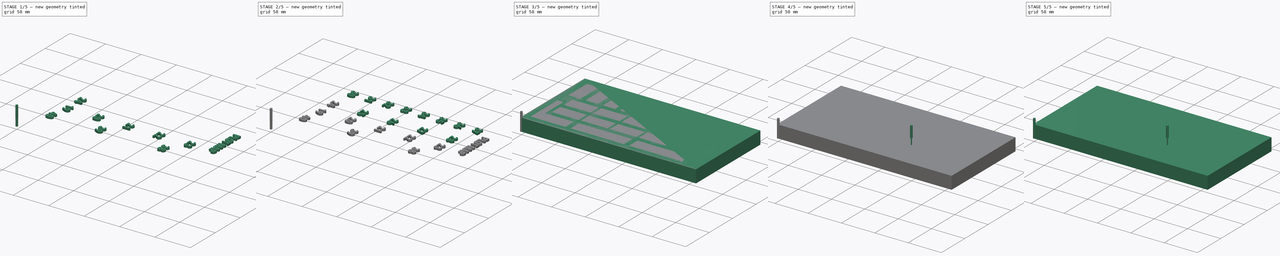
[diagram: build sequence overview — one tinted view per stage of 5, left to right]
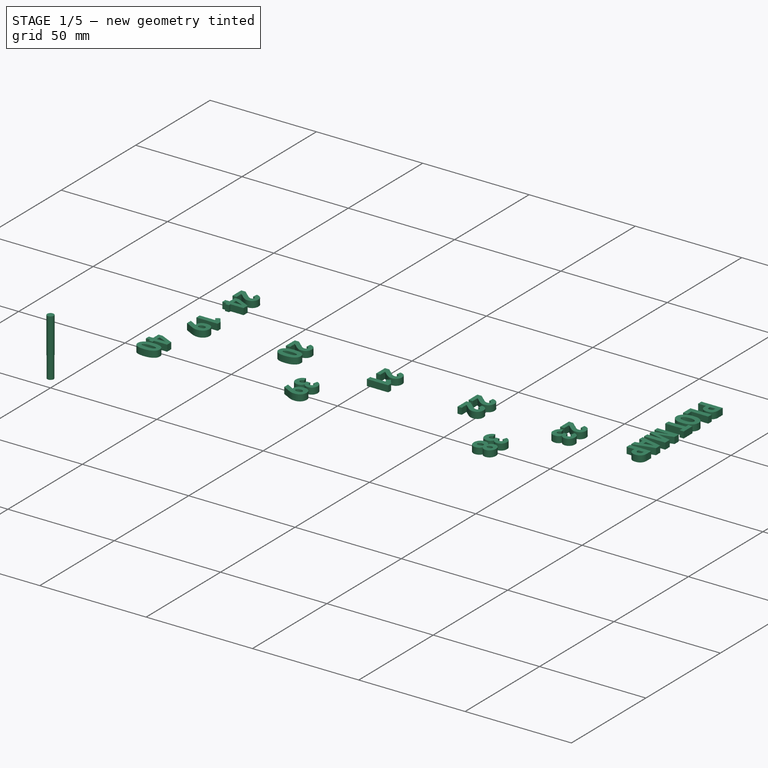
[diagram: stage 1 of 5 — iso view after this stage's code; geometry added in this stage tinted green]
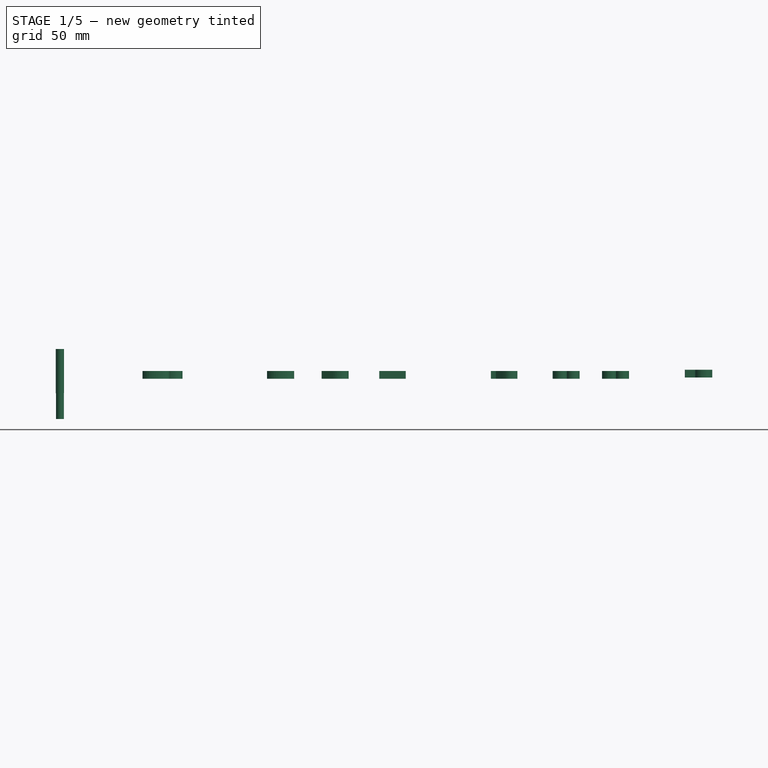
[diagram: stage 1 of 5 — front view after this stage's code; geometry added in this stage tinted green]
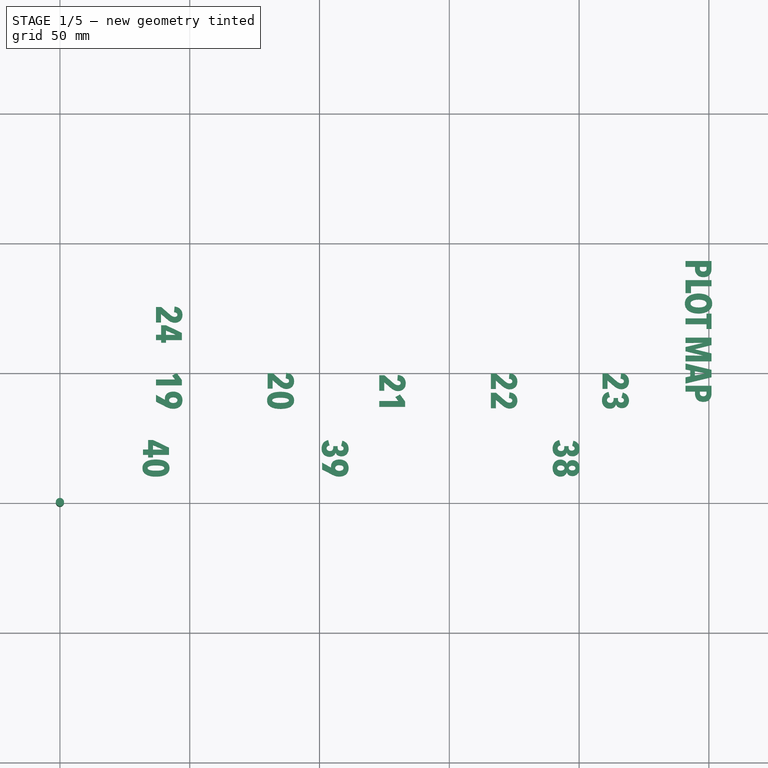
[diagram: stage 1 of 5 — top view after this stage's code; geometry added in this stage tinted green]
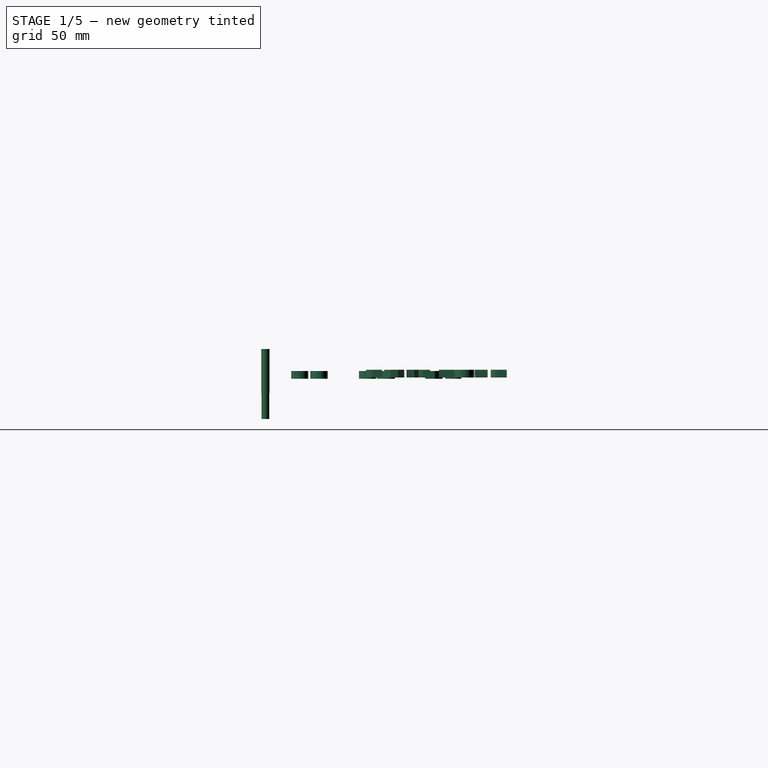
[diagram: stage 1 of 5 — right view after this stage's code; geometry added in this stage tinted green]
FCSTD DOCUMENT  (FreeCAD 0.22R37358 (Git))
Label: juell_bottom_w_title_single
License: All rights reserved
LicenseURL: http://en.wikipedia.org/wiki/All_rights_reserved
objects: Part::FeaturePython×30, Path::FeaturePython×30, Part::Part2DObjectPython×23, Part::Extrusion×23, App::DocumentObjectGroup×6, Sketcher::SketchObject×2, App::FeaturePython×2, Spreadsheet::Sheet×1, PartDesign::Pad×1, PartDesign::Pocket×1, PartDesign::Body×1, Part::MultiFuse×1, Part::Cut×1
note: 87 computed .brp shape members not serialized (recipe doc carries the construction recipe); baked Part::Feature solids carry a one-line shape summary decoded from their .brp

FEATURE [Part::Extrusion] Extrude013
  Base = -> ShapeString015
  Dir = (0,0,1)
  DirMode = 2
  FaceMakerClass = Part::FaceMakerBullseye
  LengthFwd = 3
  LengthRev = 0
  Solid = true
  Symmetric = true
FEATURE [Part::Extrusion] Extrude014
  Base = -> ShapeString016
  Dir = (0,0,1)
  DirMode = 2
  FaceMakerClass = Part::FaceMakerBullseye
  LengthFwd = 3
  LengthRev = 0
  Solid = true
  Symmetric = true
FEATURE [Part::Extrusion] Extrude015
  Base = -> ShapeString017
  Dir = (0,0,1)
  DirMode = 2
  FaceMakerClass = Part::FaceMakerBullseye
  LengthFwd = 3
  LengthRev = 0
  Solid = true
  Symmetric = true
FEATURE [Part::Extrusion] Extrude016
  Base = -> ShapeString018
  Dir = (0,0,1)
  DirMode = 2
  FaceMakerClass = Part::FaceMakerBullseye
  LengthFwd = 3
  LengthRev = 0
  Solid = true
  Symmetric = true
FEATURE [Part::Extrusion] Extrude017
  Base = -> ShapeString019
  Dir = (0,0,1)
  DirMode = 2
  FaceMakerClass = Part::FaceMakerBullseye
  LengthFwd = 3
  LengthRev = 0
  Solid = true
  Symmetric = true
FEATURE [Part::Extrusion] Extrude018
  Base = -> ShapeString020
  Dir = (0,0,1)
  DirMode = 2
  FaceMakerClass = Part::FaceMakerBullseye
  LengthFwd = 3
  LengthRev = 0
  Solid = true
  Symmetric = true
FEATURE [Part::Extrusion] Extrude019
  Base = -> ShapeString021
  Dir = (0,0,1)
  DirMode = 2
  FaceMakerClass = Part::FaceMakerBullseye
  LengthFwd = 3
  LengthRev = 0
  Solid = true
  Symmetric = true
FEATURE [Part::Extrusion] Extrude020
  Base = -> ShapeString022
  Dir = (0,0,1)
  DirMode = 2
  FaceMakerClass = Part::FaceMakerBullseye
  LengthFwd = 3
  LengthRev = 0
  Solid = true
  Symmetric = true
FEATURE [Part::Extrusion] Extrude021
  Base = -> ShapeString023
  Dir = (0,0,1)
  DirMode = 2
  FaceMakerClass = Part::FaceMakerBullseye
  LengthFwd = 3
  LengthRev = 0
  Solid = true
  Symmetric = true
FEATURE [Part::Extrusion] Extrude022
  Base = -> ShapeString024
  Dir = (0,0,1)
  DirMode = 2
  FaceMakerClass = Part::FaceMakerBullseye
  LengthFwd = 3
  LengthRev = 0
  Reversed = true
  Solid = false
  Symmetric = false
FEATURE [Path::FeaturePython] __8mm_Endmill006  label="2.8mm_Endmill002"  # Path/CAM operation (typed FeaturePython)
  HorizFeed = 3.33333
  HorizRapid = 0
  SpindleDir = 0
  SpindleSpeed = 1000
  Tool = -> ToolBit023
  ToolNumber = 12
  VertFeed = 3.33333
  VertRapid = 0
  expr: HorizRapid = SetupSheet001.HorizRapid
  expr: VertRapid = SetupSheet001.VertRapid
FEATURE [Part::FeaturePython] ToolBit024  label="3.0mm_Endmill003"  # Path/CAM toolbit (typed FeaturePython)
  BitPropertyNames = Chipload | CuttingEdgeHeight | Diameter | Flutes | Length | Material | ShankDiameter | SpindleDirection
  BitShape = /private/var/folders/4z/cpn_82wx3qz0m4lfqxz9fps80000gn/T/AppTranslocation/925D4764-D253-419F-845E-4AFC05D10BF7/d/FreeCAD.app/Contents/Resources/Mod/CAM/Tools/Shape/endmill.fcstd
  Chipload = 0
  CuttingEdgeHeight = 10
  Diameter = 3
  Flutes = 0
  Length = 27
  Material = 0
  ShankDiameter = 3.17
  ShapeName = endmill
  SpindleDirection = 0
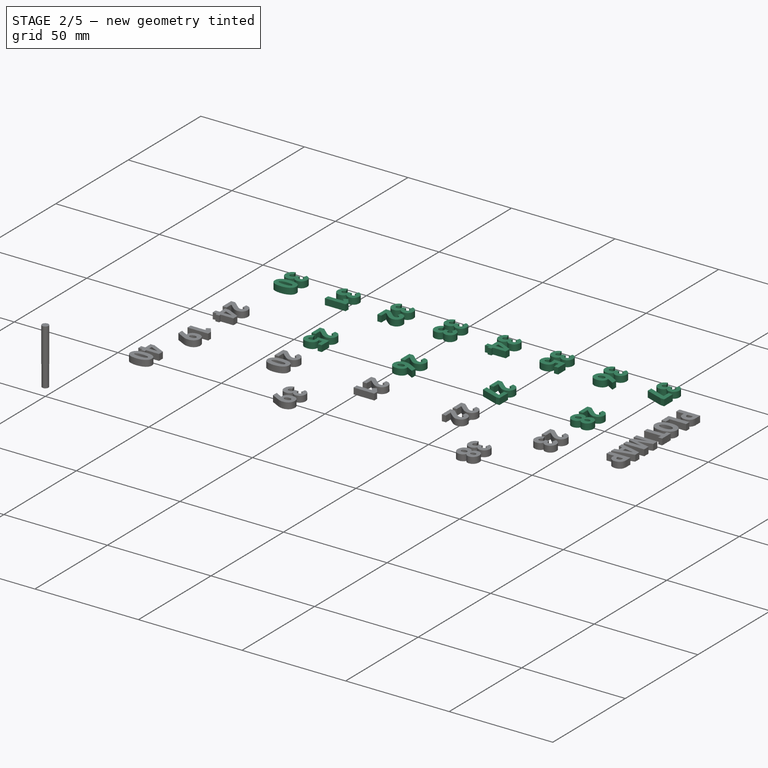
[diagram: stage 2 of 5 — iso view after this stage's code; geometry added in this stage tinted green]
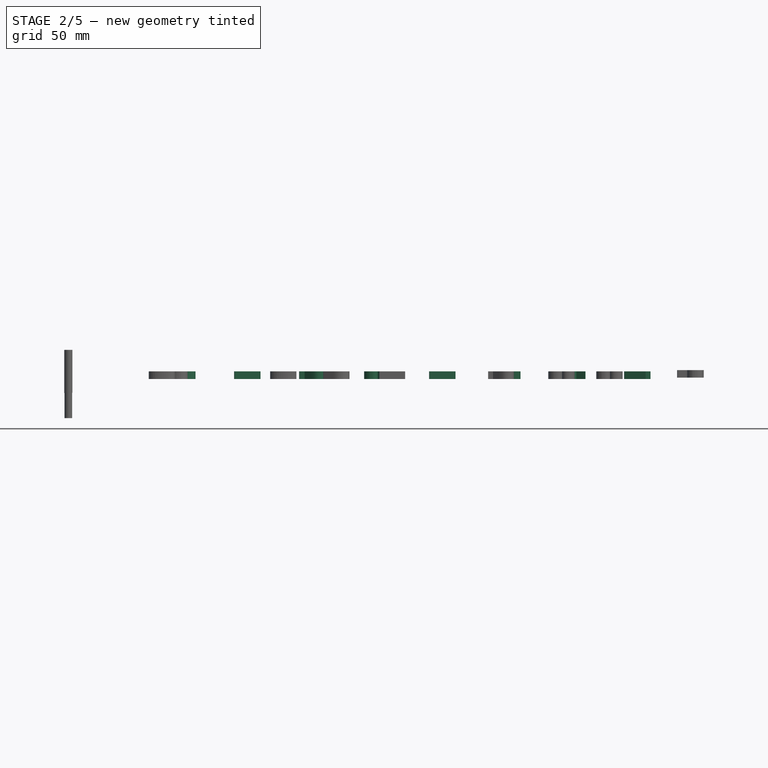
[diagram: stage 2 of 5 — front view after this stage's code; geometry added in this stage tinted green]
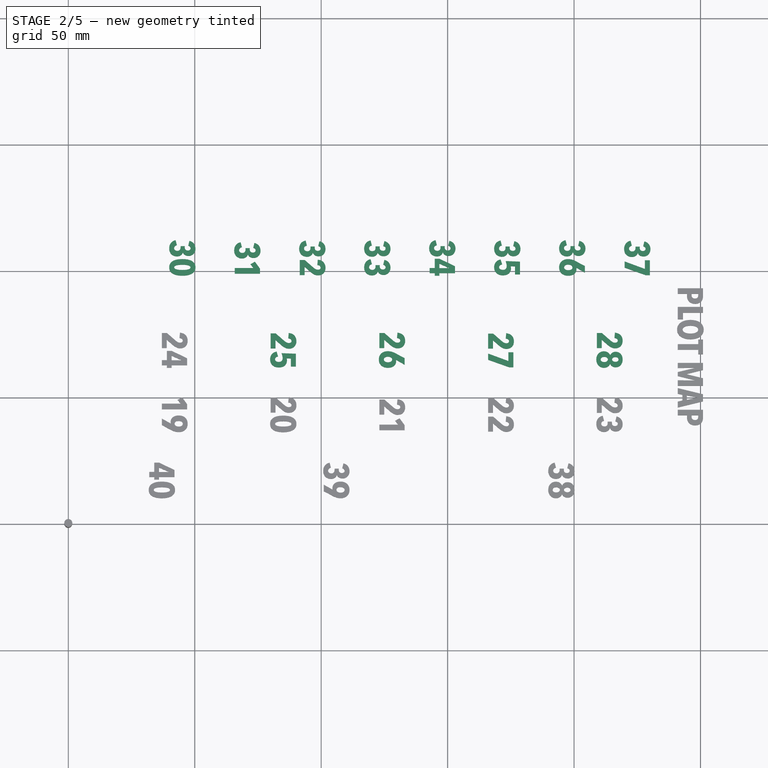
[diagram: stage 2 of 5 — top view after this stage's code; geometry added in this stage tinted green]
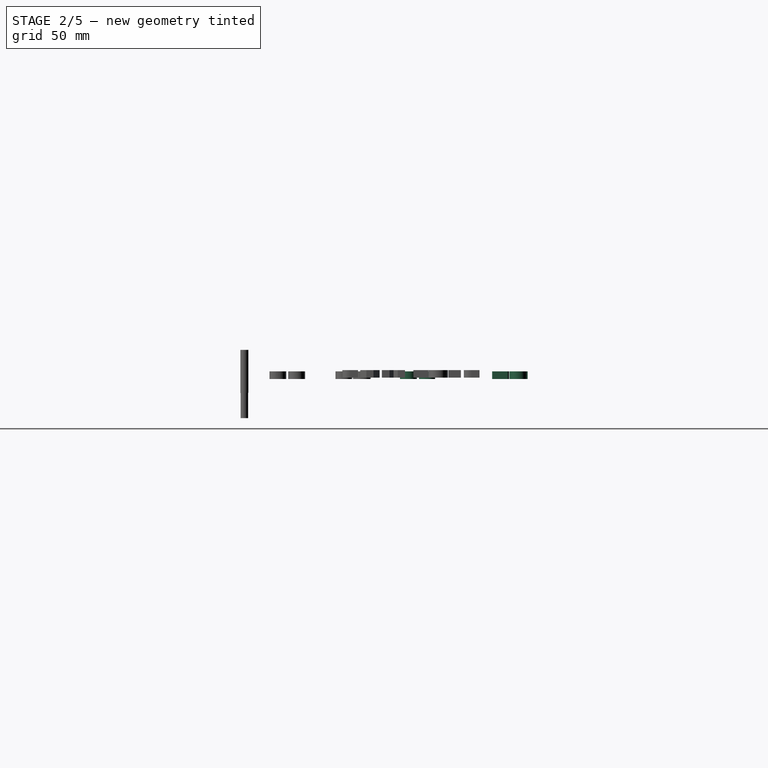
[diagram: stage 2 of 5 — right view after this stage's code; geometry added in this stage tinted green]
FEATURE [Part::Extrusion] Extrude001
  Base = -> ShapeString003
  Dir = (0,0,1)
  DirMode = 2
  FaceMakerClass = Part::FaceMakerBullseye
  LengthFwd = 3
  LengthRev = 0
  Solid = true
  Symmetric = true
FEATURE [Part::Extrusion] Extrude002
  Base = -> ShapeString004
  Dir = (0,0,1)
  DirMode = 2
  FaceMakerClass = Part::FaceMakerBullseye
  LengthFwd = 3
  LengthRev = 0
  Solid = true
  Symmetric = true
FEATURE [Part::Extrusion] Extrude003
  Base = -> ShapeString005
  Dir = (0,0,1)
  DirMode = 2
  FaceMakerClass = Part::FaceMakerBullseye
  LengthFwd = 3
  LengthRev = 0
  Solid = true
  Symmetric = true
FEATURE [Part::Extrusion] Extrude004
  Base = -> ShapeString006
  Dir = (0,0,1)
  DirMode = 2
  FaceMakerClass = Part::FaceMakerBullseye
  LengthFwd = 3
  LengthRev = 0
  Solid = true
  Symmetric = true
FEATURE [Part::Extrusion] Extrude005
  Base = -> ShapeString007
  Dir = (0,0,1)
  DirMode = 2
  FaceMakerClass = Part::FaceMakerBullseye
  LengthFwd = 3
  LengthRev = 0
  Solid = true
  Symmetric = true
FEATURE [Part::Extrusion] Extrude006
  Base = -> ShapeString008
  Dir = (0,0,1)
  DirMode = 2
  FaceMakerClass = Part::FaceMakerBullseye
  LengthFwd = 3
  LengthRev = 0
  Solid = true
  Symmetric = true
FEATURE [Part::Extrusion] Extrude007
  Base = -> ShapeString009
  Dir = (0,0,1)
  DirMode = 2
  FaceMakerClass = Part::FaceMakerBullseye
  LengthFwd = 3
  LengthRev = 0
  Solid = true
  Symmetric = true
FEATURE [Part::Extrusion] Extrude008
  Base = -> ShapeString010
  Dir = (0,0,1)
  DirMode = 2
  FaceMakerClass = Part::FaceMakerBullseye
  LengthFwd = 3
  LengthRev = 0
  Solid = true
  Symmetric = true
FEATURE [Part::Extrusion] Extrude009
  Base = -> ShapeString011
  Dir = (0,0,1)
  DirMode = 2
  FaceMakerClass = Part::FaceMakerBullseye
  LengthFwd = 3
  LengthRev = 0
  Solid = true
  Symmetric = true
FEATURE [Part::Extrusion] Extrude010
  Base = -> ShapeString012
  Dir = (0,0,1)
  DirMode = 2
  FaceMakerClass = Part::FaceMakerBullseye
  LengthFwd = 3
  LengthRev = 0
  Solid = true
  Symmetric = true
FEATURE [Part::Extrusion] Extrude011
  Base = -> ShapeString013
  Dir = (0,0,1)
  DirMode = 2
  FaceMakerClass = Part::FaceMakerBullseye
  LengthFwd = 3
  LengthRev = 0
  Solid = true
  Symmetric = true
FEATURE [Part::Extrusion] Extrude012
  Base = -> ShapeString014
  Dir = (0,0,1)
  DirMode = 2
  FaceMakerClass = Part::FaceMakerBullseye
  LengthFwd = 3
  LengthRev = 0
  Solid = true
  Symmetric = true
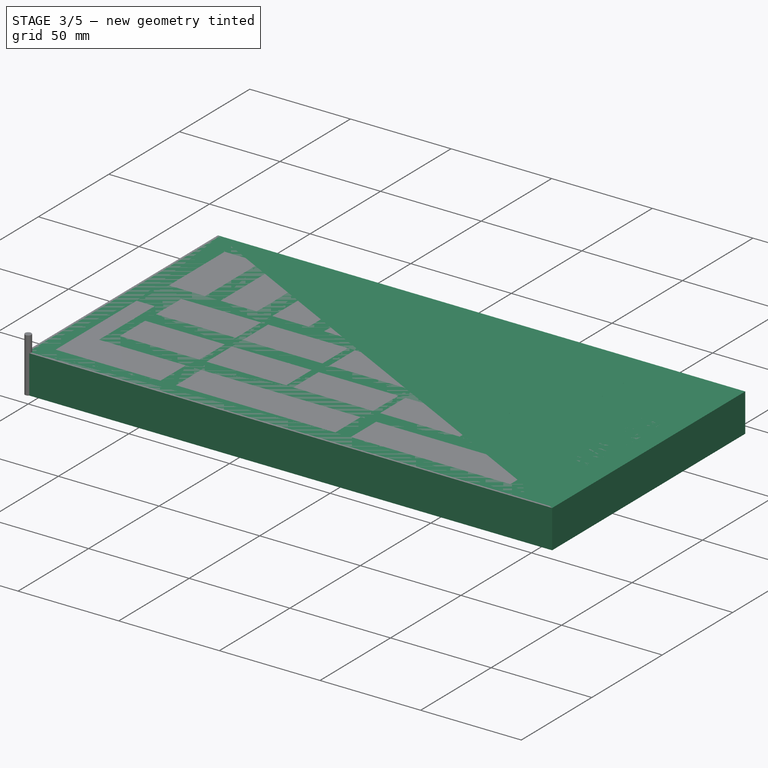
[diagram: stage 3 of 5 — iso view after this stage's code; geometry added in this stage tinted green]
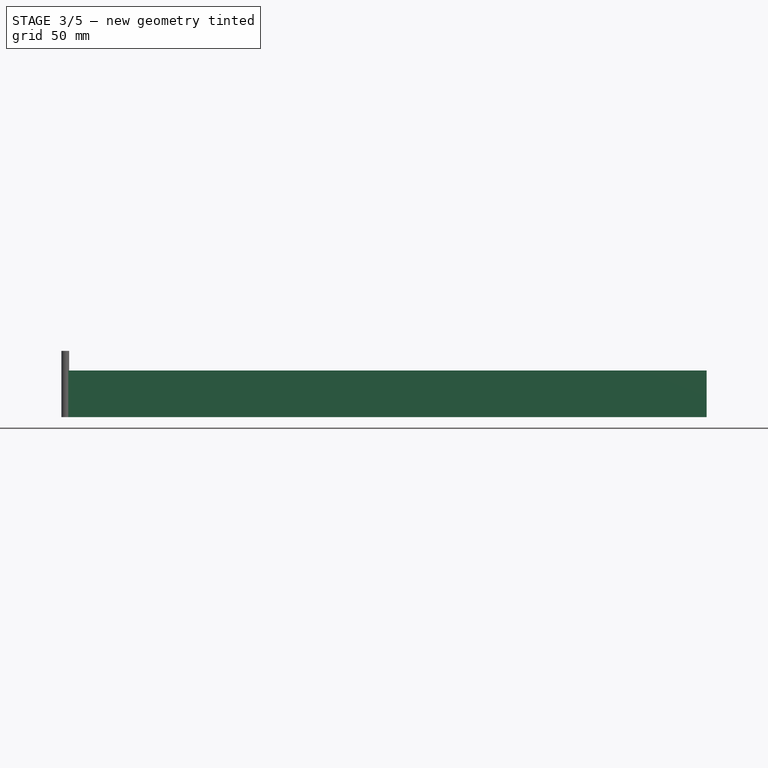
[diagram: stage 3 of 5 — front view after this stage's code; geometry added in this stage tinted green]
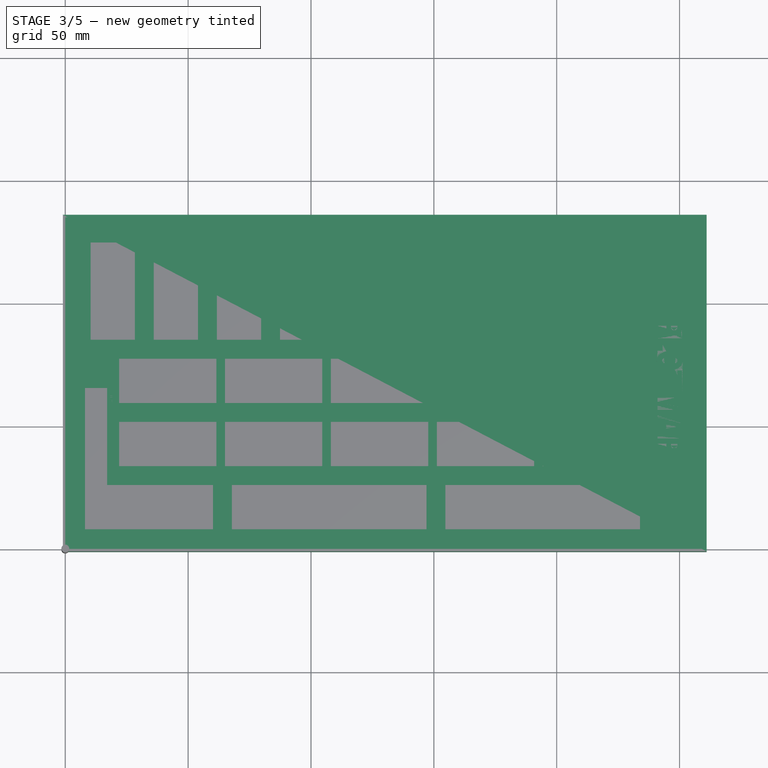
[diagram: stage 3 of 5 — top view after this stage's code; geometry added in this stage tinted green]
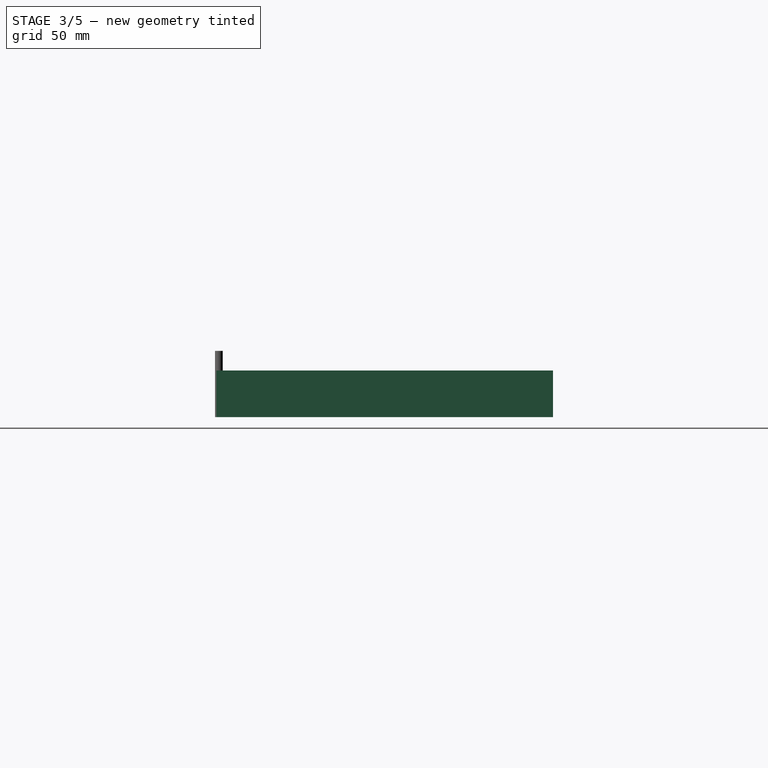
[diagram: stage 3 of 5 — right view after this stage's code; geometry added in this stage tinted green]
FEATURE [Spreadsheet::Sheet] Spreadsheet  label="vars"
  cells = A1='placard; B1(header_width)=30; E1='X; F1='Y; A2='width; B2(width)=260; C2=260; D2=29; E2(x29)==x30 - g1; F2(y29)=105; G2(g1)=25.7; A3='length; B3(length)=135; C3=155; D3=30; E3(x30)==x31 - g1; F3(y30)==y29; A4='height; B4(height)=19; D4=31; E4(x31)==x32 - g1; F4(y31)==y29; A5='border_size; B5(border_size)=8; D5=32; E5(x32)==x33 - g1; F5(y32)==y29; A6='cut_height; B6(cut_height)=2; D6=33; E6(x33)==x34 - g1; F6(y33)==y29; A7='plot_length_wide; B7(plot_length_wide)=18; C7=55; D7=34; E7(x34)==x35 - g1; F7(y34)==y29; A8='plot_width_wide; B8(plot_width_wide)==plot_length_wide * 2.2; C8==20 * 1.5502; D8=35; E8(x35)==x36 - g1; F8(y35)==y29; A9='plot_length_narrow; B9(plot_length_narrow)==plot_length_wide; C9==200 * 16; D9=36; E9(x36)==x37 - g1; F9(y36)==y29; A10='plot_width_narrow; B10(plot_width_narrow)==plot_width_wide * 2; D10=37; E10(x37)=225; F10(y37)==y29; A11='plot_border; B11(plot_border)=1; D11=38; E11(x38)=195; F11(y38)==y40; A12='plot_distance; B12(plot_distance)==plot_distance_short * 2.2; D12=39; E12(x39)=106; F12(y39)==y40; A13='plot_distance_short; B13(plot_distance_short)=3.5; D13=40; E13(x40)=37; F13(y40)=17; A14='font_size; B14(font_size)=10; D14=19; E14(x19)==E15 - G17; F14(y19)=43; A15='font_height; B15(font_height)=2; D15=20; E15(x20)==E16 - G17; F15(y20)==y19; A16='plot_border_left; B16(plot_border_left)=50; D16=21; E16(x21)==E17 - G17; F16(y21)==y19; A17='font orientation; B17(font_orientation)=90; D17=22; E17(x22)=171; F17(y22)==y19; G17==E18 - E17; A18='inner short; B18(inner_short)==plot_width_wide - plot_border * 2; D18=23; E18(x23)=214; F18(y23)==y19; A19='inner long; B19(inner_long)==plot_width_narrow - plot_border * 2; D19=24; E19(x24)==x19; F19(y24)=68.5; A20='inner end; B20(inner_end)==plot_length_wide - plot_border * 2; D20=25; E20(x25)==x20; F20(y25)==y24; D21=26; E21(x26)==x21; F21(y26)==y24; D22=27; E22(x27)==x22; F22(y27)==y24; D23=28; E23(x28)==x23; F23(y28)==y24
FEATURE [Sketcher::SketchObject] Sketch
  FullyConstrained = true
  MapMode = 5
  expr: Constraints[8] = <<vars>>.length
  expr: Constraints[9] = <<vars>>.width
  sketch-geometry (4):
    g0: LineSegment StartX=0 StartY=-260 StartZ=0 EndX=135 EndY=-260 EndZ=0
    g1: LineSegment StartX=135 StartY=-260 StartZ=0 EndX=135 EndY=0 EndZ=0
    g2: LineSegment StartX=135 StartY=0 StartZ=0 EndX=0 EndY=0 EndZ=0
    g3: LineSegment StartX=0 StartY=0 StartZ=0 EndX=0 EndY=-260 EndZ=0
  constraints (11):
    c: Coincident(g0,g1)
    c: Coincident(g1,g2)
    c: Coincident(g2,g3)
    c: Coincident(g3,g0)
    c: Horizontal(g0)
    c: Horizontal(g2)
    c: Vertical(g1)
    c: Vertical(g3)
    c: DistanceX(g2,g2) = 135
    c: DistanceY(g3,g3) = 260
    c: Coincident(g2,g-1)
FEATURE [PartDesign::Pad] Pad
  Direction = (0,0,1)
  Length = 19
  Length2 = 10
  Profile = -> Sketch
  ReferenceAxis = -> Sketch [N_Axis]
  Suppressed = false
  Type = 0
  expr: Length = <<vars>>.height
FEATURE [Sketcher::SketchObject] Sketch001
  AttachmentOffset = pos=(0,0,19.01) rot=(0,0,1;0rad)
  ExternalGeometry = -> [Pad]
  FullyConstrained = true
  MapMode = 5
  Placement = pos=(0,0,19.01) rot=(0,0,1;0rad)
  expr: Constraints[107] = <<vars>>.plot_distance
  expr: Constraints[157] = <<vars>>.plot_width_wide + <<vars>>.plot_distance_short
  expr: Constraints[158] = <<vars>>.plot_distance
  expr: Constraints[159] = <<vars>>.plot_distance
  expr: Constraints[161] = <<vars>>.border_size
  expr: Constraints[162] = <<vars>>.border_size
  expr: Constraints[171] = <<vars>>.plot_width_wide
  expr: Constraints[172] = <<vars>>.plot_length_narrow
  expr: Constraints[173] = <<vars>>.plot_distance
  expr: Constraints[18] = <<vars>>.plot_width_narrow
  expr: Constraints[20] = <<vars>>.plot_length_wide / 2
  expr: Constraints[22] = <<vars>>.plot_length_wide * 2 + <<vars>>.plot_distance_short
  expr: Constraints[23] = <<vars>>.plot_length_narrow
  expr: Constraints[24] = <<vars>>.plot_length_wide
  expr: Constraints[256] = <<vars>>.plot_distance
  expr: Constraints[257] = <<vars>>.plot_distance
  expr: Constraints[258] = <<vars>>.plot_distance
  expr: Constraints[259] = <<vars>>.plot_distance
  expr: Constraints[260] = <<vars>>.plot_distance
  expr: Constraints[261] = <<vars>>.plot_distance
  expr: Constraints[262] = <<vars>>.plot_distance
  expr: Constraints[263] = <<vars>>.plot_distance
  expr: Constraints[271] = <<vars>>.border_size
  expr: Constraints[33] = <<vars>>.plot_width_narrow
  expr: Constraints[34] = <<vars>>.plot_length_wide
  expr: Constraints[36] = <<vars>>.plot_distance
  expr: Constraints[45] = <<vars>>.plot_width_wide
  expr: Constraints[46] = <<vars>>.plot_length_wide
  expr: Constraints[47] = <<vars>>.plot_distance
  expr: Constraints[88] = <<vars>>.plot_distance_short
  expr: Constraints[89] = <<vars>>.plot_distance_short
  expr: Constraints[90] = <<vars>>.plot_distance_short
  expr: Constraints[91] = <<vars>>.plot_distance_short
  expr: Constraints[96] = <<vars>>.plot_distance_short
  sketch-geometry (90):
    g0: LineSegment StartX=8 StartY=-233.9 StartZ=0 EndX=26 EndY=-233.9 EndZ=0
    g1: LineSegment StartX=26 StartY=-233.9 StartZ=0 EndX=26 EndY=-154.7 EndZ=0
    g2: LineSegment StartX=26 StartY=-154.7 StartZ=0 EndX=8 EndY=-154.7 EndZ=0
    g3: LineSegment StartX=8 StartY=-154.7 StartZ=0 EndX=8 EndY=-233.9 EndZ=0
    g4: LineSegment StartX=8 StartY=-60.1 StartZ=0 EndX=8 EndY=-8 EndZ=0
    g5: LineSegment StartX=8 StartY=-8 StartZ=0 EndX=65.5 EndY=-8 EndZ=0
    g6: LineSegment StartX=65.5 StartY=-8 StartZ=0 EndX=65.5 EndY=-17 EndZ=0
    g7: LineSegment StartX=65.5 StartY=-17 StartZ=0 EndX=26 EndY=-17 EndZ=0
    g8: LineSegment StartX=26 StartY=-17 StartZ=0 EndX=26 EndY=-60.1 EndZ=0
    g9: LineSegment StartX=26 StartY=-60.1 StartZ=0 EndX=8 EndY=-60.1 EndZ=0
    g10: LineSegment StartX=8 StartY=-67.8 StartZ=0 EndX=8 EndY=-147 EndZ=0
    g11: LineSegment StartX=8 StartY=-147 StartZ=0 EndX=26 EndY=-147 EndZ=0
    g12: LineSegment StartX=26 StartY=-147 StartZ=0 EndX=26 EndY=-67.8 EndZ=0
    g13: LineSegment StartX=26 StartY=-67.8 StartZ=0 EndX=8 EndY=-67.8 EndZ=0
    g14: LineSegment StartX=33.7 StartY=-233.9 StartZ=0 EndX=51.7 EndY=-233.9 EndZ=0
    g15: LineSegment StartX=51.7 StartY=-233.9 StartZ=0 EndX=51.7 EndY=-194.3 EndZ=0
    g16: LineSegment StartX=51.7 StartY=-194.3 StartZ=0 EndX=33.7 EndY=-194.3 EndZ=0
    g17: LineSegment StartX=33.7 StartY=-194.3 StartZ=0 EndX=33.7 EndY=-233.9 EndZ=0
    g18: LineSegment StartX=33.7 StartY=-190.8 StartZ=0 EndX=51.7 EndY=-190.8 EndZ=0
    g19: LineSegment StartX=51.7 StartY=-190.8 StartZ=0 EndX=51.7 EndY=-151.2 EndZ=0
    g20: LineSegment StartX=51.7 StartY=-151.2 StartZ=0 EndX=33.7 EndY=-151.2 EndZ=0
    g21: LineSegment StartX=33.7 StartY=-151.2 StartZ=0 EndX=33.7 EndY=-190.8 EndZ=0
    g22: LineSegment StartX=33.7 StartY=-147.7 StartZ=0 EndX=51.7 EndY=-147.7 EndZ=0
    g23: LineSegment StartX=51.7 StartY=-147.7 StartZ=0 EndX=51.7 EndY=-108.1 EndZ=0
    g24: LineSegment StartX=51.7 StartY=-108.1 StartZ=0 EndX=33.7 EndY=-108.1 EndZ=0
    g25: LineSegment StartX=33.7 StartY=-108.1 StartZ=0 EndX=33.7 EndY=-147.7 EndZ=0
    g26: LineSegment StartX=33.7 StartY=-104.6 StartZ=0 EndX=51.7 EndY=-104.6 EndZ=0
    g27: LineSegment StartX=51.7 StartY=-104.6 StartZ=0 EndX=51.7 EndY=-65 EndZ=0
    g28: LineSegment StartX=51.7 StartY=-65 StartZ=0 EndX=33.7 EndY=-65 EndZ=0
    g29: LineSegment StartX=33.7 StartY=-65 StartZ=0 EndX=33.7 EndY=-104.6 EndZ=0
    g30: LineSegment StartX=33.7 StartY=-61.5 StartZ=0 EndX=51.7 EndY=-61.5 EndZ=0
    g31: LineSegment StartX=51.7 StartY=-61.5 StartZ=0 EndX=51.7 EndY=-21.9 EndZ=0
    g32: LineSegment StartX=51.7 StartY=-21.9 StartZ=0 EndX=33.7 EndY=-21.9 EndZ=0
    g33: LineSegment StartX=33.7 StartY=-21.9 StartZ=0 EndX=33.7 EndY=-61.5 EndZ=0
    g34: LineSegment StartX=59.4 StartY=-194.3 StartZ=0 EndX=59.4 EndY=-233.9 EndZ=0
    g35: LineSegment StartX=59.4 StartY=-233.9 StartZ=0 EndX=77.4 EndY=-233.9 EndZ=0
    g36: LineSegment StartX=77.4 StartY=-233.9 StartZ=0 EndX=77.4 EndY=-194.3 EndZ=0
    g37: LineSegment StartX=77.4 StartY=-194.3 StartZ=0 EndX=59.4 EndY=-194.3 EndZ=0
    g38: LineSegment StartX=59.4 StartY=-151.2 StartZ=0 EndX=59.4 EndY=-190.8 EndZ=0
    g39: LineSegment StartX=59.4 StartY=-190.8 StartZ=0 EndX=77.4 EndY=-190.8 EndZ=0
    g40: LineSegment StartX=77.4 StartY=-190.8 StartZ=0 EndX=77.4 EndY=-151.2 EndZ=0
    g41: LineSegment StartX=77.4 StartY=-151.2 StartZ=0 EndX=59.4 EndY=-151.2 EndZ=0
    g42: LineSegment StartX=59.4 StartY=-108.1 StartZ=0 EndX=59.4 EndY=-147.7 EndZ=0
    g43: LineSegment StartX=59.4 StartY=-147.7 StartZ=0 EndX=77.4 EndY=-147.7 EndZ=0
    g44: LineSegment StartX=77.4 StartY=-147.7 StartZ=0 EndX=77.4 EndY=-108.1 EndZ=0
    g45: LineSegment StartX=77.4 StartY=-108.1 StartZ=0 EndX=59.4 EndY=-108.1 EndZ=0
    g46: LineSegment StartX=59.4 StartY=-65 StartZ=0 EndX=59.4 EndY=-104.6 EndZ=0
    g47: LineSegment StartX=59.4 StartY=-104.6 StartZ=0 EndX=77.4 EndY=-104.6 EndZ=0
    g48: LineSegment StartX=77.4 StartY=-104.6 StartZ=0 EndX=77.4 EndY=-65 EndZ=0
    g49: LineSegment StartX=77.4 StartY=-65 StartZ=0 EndX=59.4 EndY=-65 EndZ=0
    g50: LineSegment StartX=59.4 StartY=-21.9 StartZ=0 EndX=59.4 EndY=-61.5 EndZ=0
    g51: LineSegment StartX=59.4 StartY=-61.5 StartZ=0 EndX=77.4 EndY=-61.5 EndZ=0
    g52: LineSegment StartX=77.4 StartY=-61.5 StartZ=0 EndX=77.4 EndY=-21.9 EndZ=0
    g53: LineSegment StartX=77.4 StartY=-21.9 StartZ=0 EndX=59.4 EndY=-21.9 EndZ=0
    g54: LineSegment StartX=85.1 StartY=-215.9 StartZ=0 EndX=85.1 EndY=-233.9 EndZ=0
    g55: LineSegment StartX=85.1 StartY=-233.9 StartZ=0 EndX=124.7 EndY=-233.9 EndZ=0
    g56: LineSegment StartX=124.7 StartY=-233.9 StartZ=0 EndX=124.7 EndY=-215.9 EndZ=0
    g57: LineSegment StartX=124.7 StartY=-215.9 StartZ=0 EndX=85.1 EndY=-215.9 EndZ=0
    g58: LineSegment StartX=85.1 StartY=-190.2 StartZ=0 EndX=85.1 EndY=-208.2 EndZ=0
    g59: LineSegment StartX=85.1 StartY=-208.2 StartZ=0 EndX=124.7 EndY=-208.2 EndZ=0
    g60: LineSegment StartX=124.7 StartY=-208.2 StartZ=0 EndX=124.7 EndY=-190.2 EndZ=0
    g61: LineSegment StartX=124.7 StartY=-190.2 StartZ=0 EndX=85.1 EndY=-190.2 EndZ=0
    g62: LineSegment StartX=85.1 StartY=-164.5 StartZ=0 EndX=85.1 EndY=-182.5 EndZ=0
    g63: LineSegment StartX=85.1 StartY=-182.5 StartZ=0 EndX=124.7 EndY=-182.5 EndZ=0
    g64: LineSegment StartX=124.7 StartY=-182.5 StartZ=0 EndX=124.7 EndY=-164.5 EndZ=0
    g65: LineSegment StartX=124.7 StartY=-164.5 StartZ=0 EndX=85.1 EndY=-164.5 EndZ=0
    g66: LineSegment StartX=85.1 StartY=-138.8 StartZ=0 EndX=85.1 EndY=-156.8 EndZ=0
    g67: LineSegment StartX=85.1 StartY=-156.8 StartZ=0 EndX=124.7 EndY=-156.8 EndZ=0
    g68: LineSegment StartX=124.7 StartY=-156.8 StartZ=0 EndX=124.7 EndY=-138.8 EndZ=0
    g69: LineSegment StartX=124.7 StartY=-138.8 StartZ=0 EndX=85.1 EndY=-138.8 EndZ=0
    g70: LineSegment StartX=85.1 StartY=-113.1 StartZ=0 EndX=85.1 EndY=-131.1 EndZ=0
    g71: LineSegment StartX=85.1 StartY=-131.1 StartZ=0 EndX=124.7 EndY=-131.1 EndZ=0
    g72: LineSegment StartX=124.7 StartY=-131.1 StartZ=0 EndX=124.7 EndY=-113.1 EndZ=0
    g73: LineSegment StartX=124.7 StartY=-113.1 StartZ=0 EndX=85.1 EndY=-113.1 EndZ=0
    g74: LineSegment StartX=85.1 StartY=-87.4 StartZ=0 EndX=85.1 EndY=-105.4 EndZ=0
    g75: LineSegment StartX=85.1 StartY=-105.4 StartZ=0 EndX=124.7 EndY=-105.4 EndZ=0
    g76: LineSegment StartX=124.7 StartY=-105.4 StartZ=0 EndX=124.7 EndY=-87.4 EndZ=0
    g77: LineSegment StartX=124.7 StartY=-87.4 StartZ=0 EndX=85.1 EndY=-87.4 EndZ=0
    g78: LineSegment StartX=85.1 StartY=-61.7 StartZ=0 EndX=85.1 EndY=-79.7 EndZ=0
    g79: LineSegment StartX=85.1 StartY=-79.7 StartZ=0 EndX=124.7 EndY=-79.7 EndZ=0
    g80: LineSegment StartX=124.7 StartY=-79.7 StartZ=0 EndX=124.7 EndY=-61.7 EndZ=0
    g81: LineSegment StartX=124.7 StartY=-61.7 StartZ=0 EndX=85.1 EndY=-61.7 EndZ=0
    g82: LineSegment StartX=85.1 StartY=-36 StartZ=0 EndX=85.1 EndY=-54 EndZ=0
    g83: LineSegment StartX=85.1 StartY=-54 StartZ=0 EndX=124.7 EndY=-54 EndZ=0
    g84: LineSegment StartX=124.7 StartY=-54 StartZ=0 EndX=124.7 EndY=-36 EndZ=0
    g85: LineSegment StartX=124.7 StartY=-36 StartZ=0 EndX=85.1 EndY=-36 EndZ=0
    g86: LineSegment StartX=85.1 StartY=-10.3 StartZ=0 EndX=85.1 EndY=-28.3 EndZ=0
    g87: LineSegment StartX=85.1 StartY=-28.3 StartZ=0 EndX=124.7 EndY=-28.3 EndZ=0
    g88: LineSegment StartX=124.7 StartY=-28.3 StartZ=0 EndX=124.7 EndY=-10.3 EndZ=0
    g89: LineSegment StartX=124.7 StartY=-10.3 StartZ=0 EndX=85.1 EndY=-10.3 EndZ=0
  constraints (272):
    c: Coincident(g0,g1)
    c: Coincident(g1,g2)
    c: Coincident(g2,g3)
    c: Coincident(g3,g0)
    c: Horizontal(g0)
    c: Horizontal(g2)
    c: Vertical(g1)
    c: Vertical(g3)
    c: Coincident(g4,g5)
    c: Coincident(g5,g6)
    c: Coincident(g6,g7)
    c: Coincident(g7,g8)
    c: Coincident(g8,g9)
    c: Coincident(g9,g4)
    c: Vertical(g4)
    c: Vertical(g8)
    c: Horizontal(g7)
    c: Vertical(g6)
    c: DistanceY(g3,g3) = 79.2
    c: Horizontal(g9)
    c: DistanceY(g6,g6) = 9
    c: Horizontal(g5)
    c: DistanceX(g7,g7) = 39.5
    c: DistanceX(g2,g2) = 18
    c: DistanceX(g9,g9) = 18
    c: Coincident(g10,g11)
    c: Coincident(g11,g12)
    c: Coincident(g12,g13)
    c: Coincident(g13,g10)
    c: Vertical(g10)
    c: Vertical(g12)
    c: Horizontal(g11)
    c: Horizontal(g13)
    c: DistanceY(g10,g10) = 79.2
    c: DistanceX(g13,g13) = 18
    c: Vertical(g2,g10)
    c: DistanceY(g2,g10) = 7.7
    c: Coincident(g14,g15)
    c: Coincident(g15,g16)
    c: Coincident(g16,g17)
    c: Coincident(g17,g14)
    c: Horizontal(g14)
    c: Horizontal(g16)
    c: Vertical(g15)
    c: Vertical(g17)
    c: DistanceY(g17,g17) = 39.6
    c: DistanceX(g16,g16) = 18
    c: DistanceX(g0,g14) = 7.7
    c: Coincident(g18,g19)
    c: Coincident(g22,g23)
    c: Coincident(g26,g27)
    c: Coincident(g30,g31)
    c: Coincident(g19,g20)
    c: Coincident(g23,g24)
    c: Coincident(g27,g28)
    c: Coincident(g31,g32)
    c: Coincident(g20,g21)
    c: Coincident(g24,g25)
    c: Coincident(g28,g29)
    c: Coincident(g32,g33)
    c: Coincident(g21,g18)
    c: Coincident(g25,g22)
    c: Coincident(g29,g26)
    c: Coincident(g33,g30)
    c: Horizontal(g18)
    c: Horizontal(g22)
    c: Horizontal(g26)
    c: Horizontal(g30)
    c: Horizontal(g20)
    c: Horizontal(g24)
    c: Horizontal(g28)
    c: Horizontal(g32)
    c: Vertical(g19)
    c: Vertical(g23)
    c: Vertical(g27)
    c: Vertical(g31)
    c: Vertical(g21)
    c: Vertical(g25)
    c: Vertical(g29)
    c: Vertical(g33)
    c: Equal(g17,g21)
    c: Equal(g17,g25)
    c: Equal(g17,g29)
    c: Equal(g17,g33)
    c: Equal(g16,g20)
    c: Equal(g16,g24)
    c: Equal(g16,g28)
    c: Equal(g16,g32)
    c: DistanceY(g28,g30) = 3.5
    c: DistanceY(g32,g7) = 3.5
    c: DistanceY(g24,g26) = 3.5
    c: DistanceY(g20,g22) = 3.5
    c: Vertical(g16,g20)
    c: Vertical(g20,g24)
    c: Vertical(g24,g28)
    c: Vertical(g28,g32)
    c: DistanceY(g16,g18) = 3.5
    c: Coincident(g34,g35)
    c: Coincident(g35,g36)
    c: Coincident(g36,g37)
    c: Coincident(g37,g34)
    c: Vertical(g34)
    c: Vertical(g36)
    c: Horizontal(g35)
    c: Horizontal(g37)
    c: Equal(g15,g34)
    c: Equal(g16,g37)
    c: DistanceX(g14,g34) = 7.7
    c: Coincident(g38,g39)
    c: Coincident(g42,g43)
    c: Coincident(g46,g47)
    c: Coincident(g50,g51)
    c: Coincident(g39,g40)
    c: Coincident(g43,g44)
    c: Coincident(g47,g48)
    c: Coincident(g51,g52)
    c: Coincident(g40,g41)
    c: Coincident(g44,g45)
    c: Coincident(g48,g49)
    c: Coincident(g52,g53)
    c: Coincident(g41,g38)
    c: Coincident(g45,g42)
    c: Coincident(g49,g46)
    c: Coincident(g53,g50)
    c: Vertical(g38)
    c: Vertical(g42)
    c: Vertical(g46)
    c: Vertical(g50)
    c: Vertical(g40)
    c: Vertical(g44)
    c: Vertical(g48)
    c: Vertical(g52)
    c: Horizontal(g39)
    c: Horizontal(g43)
    c: Horizontal(g47)
    c: Horizontal(g51)
    c: Horizontal(g41)
    c: Horizontal(g45)
    c: Horizontal(g49)
    c: Horizontal(g53)
    c: Horizontal(g14,g35)
    c: Vertical(g34,g38)
    c: Vertical(g38,g42)
    c: Vertical(g42,g46)
    c: Vertical(g46,g50)
    c: Horizontal(g18,g38)
    c: Equal(g18,g39)
    c: Equal(g39,g43)
    c: Equal(g43,g47)
    c: Equal(g47,g51)
    c: Equal(g19,g38)
    c: Equal(g38,g42)
    c: Equal(g42,g46)
    c: Equal(g31,g50)
    c: Horizontal(g22,g42)
    c: Horizontal(g26,g46)
    c: Horizontal(g30,g50)
    c: DistanceY(g8,g8) = 43.1
    c: DistanceY(g10,g4) = 7.7
    c: DistanceY(g32,g7) = 7.7
    c: Horizontal(g14,g0)
    c: DistanceX(g-3,g4) = 8
    c: DistanceX(g-3,g10) = 8
    c: Coincident(g54,g55)
    c: Coincident(g55,g56)
    c: Coincident(g56,g57)
    c: Coincident(g57,g54)
    c: Vertical(g54)
    c: Vertical(g56)
    c: Horizontal(g55)
    c: Horizontal(g57)
    c: DistanceX(g57,g57) = 39.6
    c: DistanceY(g54,g54) = 18
    c: DistanceX(g35,g54) = 7.7
    c: Coincident(g58,g59)
    c: Coincident(g62,g63)
    c: Coincident(g66,g67)
    c: Coincident(g70,g71)
    c: Coincident(g74,g75)
    c: Coincident(g78,g79)
    c: Coincident(g82,g83)
    c: Coincident(g86,g87)
    c: Coincident(g59,g60)
    c: Coincident(g63,g64)
    c: Coincident(g67,g68)
    c: Coincident(g71,g72)
    c: Coincident(g75,g76)
    c: Coincident(g79,g80)
    c: Coincident(g83,g84)
    c: Coincident(g87,g88)
    c: Coincident(g60,g61)
    c: Coincident(g64,g65)
    c: Coincident(g68,g69)
    c: Coincident(g72,g73)
    c: Coincident(g76,g77)
    c: Coincident(g80,g81)
    c: Coincident(g84,g85)
    c: Coincident(g88,g89)
    c: Coincident(g61,g58)
    c: Coincident(g65,g62)
    c: Coincident(g69,g66)
    c: Coincident(g73,g70)
    c: Coincident(g77,g74)
    c: Coincident(g81,g78)
    c: Coincident(g85,g82)
    c: Coincident(g89,g86)
    c: Vertical(g58)
    c: Vertical(g62)
    c: Vertical(g66)
    c: Vertical(g70)
    c: Vertical(g74)
    c: Vertical(g78)
    c: Vertical(g82)
    c: Vertical(g86)
    c: Vertical(g60)
    c: Vertical(g64)
    c: Vertical(g68)
    c: Vertical(g72)
    c: Vertical(g76)
    c: Vertical(g80)
    c: Vertical(g84)
    c: Vertical(g88)
    c: Horizontal(g59)
    c: Horizontal(g63)
    c: Horizontal(g67)
    c: Horizontal(g71)
    c: Horizontal(g75)
    c: Horizontal(g79)
    c: Horizontal(g83)
    c: Horizontal(g87)
    c: Horizontal(g61)
    c: Horizontal(g65)
    c: Horizontal(g69)
    c: Horizontal(g73)
    c: Horizontal(g77)
    c: Horizontal(g81)
    c: Horizontal(g85)
    c: Horizontal(g89)
    c: Equal(g57,g61)
    c: Equal(g57,g65)
    c: Equal(g57,g69)
    c: Equal(g57,g73)
    c: Equal(g57,g77)
    c: Equal(g57,g81)
    c: Equal(g57,g85)
    c: Equal(g57,g89)
    c: Equal(g54,g58)
    c: Equal(g54,g62)
    c: Equal(g54,g66)
    c: Equal(g54,g70)
    c: Equal(g54,g74)
    c: Equal(g54,g78)
    c: Equal(g54,g82)
    c: Equal(g54,g86)
    c: Horizontal(g35,g54)
    c: Vertical(g58,g54)
    c: DistanceY(g54,g58) = 7.7
    c: DistanceY(g82,g86) = 7.7
    c: DistanceY(g78,g82) = 7.7
    c: DistanceY(g74,g78) = 7.7
    c: DistanceY(g70,g74) = 7.7
    c: DistanceY(g66,g70) = 7.7
    c: DistanceY(g62,g66) = 7.7
    c: DistanceY(g58,g62) = 7.7
    c: Vertical(g58,g62)
    c: Vertical(g62,g66)
    c: Vertical(g66,g70)
    c: Vertical(g70,g74)
    c: Vertical(g78,g74)
    c: Vertical(g78,g82)
    c: Vertical(g86,g82)
    c: DistanceY(g4,g-3) = 8
FEATURE [Part::Part2DObjectPython] ShapeString  label="Plot29"  # Draft 2D object (typed FeaturePython)
  FontFile = /System/Library/Fonts/Avenir Next Condensed.ttc
  Fuse = false
  Justification = 4
  JustificationReference = 0
  KeepLeftMargin = false
  MakeFace = true
  ObliqueAngle = 0
  Placement = pos=(19.4,105,17) rot=(0,0,-1;1.5708rad)
  ScaleToSize = true
  Size = 10
  String = 29
  Tracking = 0
  expr: .Placement.Base.x = <<vars>>.x29
  expr: .Placement.Base.y = <<vars>>.y29
  expr: .Placement.Base.z = <<vars>>.height - <<vars>>.cut_height
  expr: .Placement.Rotation.Angle = <<vars>>.font_orientation
  expr: Size = <<vars>>.font_size
FEATURE [Part::Part2DObjectPython] ShapeString003  label="Plot30"  # Draft 2D object (typed FeaturePython)
  FontFile = /System/Library/Fonts/Avenir Next Condensed.ttc
  Fuse = false
  Justification = 4
  JustificationReference = 0
  KeepLeftMargin = false
  MakeFace = true
  ObliqueAngle = 0
  Placement = pos=(45.1,105,17) rot=(0,0,-1;1.5708rad)
  ScaleToSize = true
  Size = 10
  String = 30
  Tracking = 0
  expr: .Placement.Base.x = <<vars>>.x30
  expr: .Placement.Base.y = <<vars>>.y30
  expr: .Placement.Base.z = <<vars>>.height - <<vars>>.cut_height
  expr: .Placement.Rotation.Angle = <<vars>>.font_orientation
  expr: Size = <<vars>>.font_size
FEATURE [Part::Part2DObjectPython] ShapeString004  label="Plot31"  # Draft 2D object (typed FeaturePython)
  FontFile = /System/Library/Fonts/Avenir Next Condensed.ttc
  Fuse = false
  Justification = 4
  JustificationReference = 0
  KeepLeftMargin = false
  MakeFace = true
  ObliqueAngle = 0
  Placement = pos=(70.8,105,17) rot=(0,0,-1;1.5708rad)
  ScaleToSize = true
  Size = 10
  String = 31
  Tracking = 0
  expr: .Placement.Base.x = <<vars>>.x31
  expr: .Placement.Base.y = <<vars>>.y31
  expr: .Placement.Base.z = <<vars>>.height - <<vars>>.cut_height
  expr: .Placement.Rotation.Angle = <<vars>>.font_orientation
  expr: Size = <<vars>>.font_size
FEATURE [Part::Part2DObjectPython] ShapeString005  label="Plot32"  # Draft 2D object (typed FeaturePython)
  FontFile = /System/Library/Fonts/Avenir Next Condensed.ttc
  Fuse = false
  Justification = 4
  JustificationReference = 0
  KeepLeftMargin = false
  MakeFace = true
  ObliqueAngle = 0
  Placement = pos=(96.5,105,17) rot=(0,0,-1;1.5708rad)
  ScaleToSize = true
  Size = 10
  String = 32
  Tracking = 0
  expr: .Placement.Base.x = <<vars>>.x32
  expr: .Placement.Base.y = <<vars>>.y32
  expr: .Placement.Base.z = <<vars>>.height - <<vars>>.cut_height
  expr: .Placement.Rotation.Angle = <<vars>>.font_orientation
  expr: Size = <<vars>>.font_size
FEATURE [Part::Part2DObjectPython] ShapeString006  label="Plot33"  # Draft 2D object (typed FeaturePython)
  FontFile = /System/Library/Fonts/Avenir Next Condensed.ttc
  Fuse = false
  Justification = 4
  JustificationReference = 0
  KeepLeftMargin = false
  MakeFace = true
  ObliqueAngle = 0
  Placement = pos=(122.2,105,17) rot=(0,0,-1;1.5708rad)
  ScaleToSize = true
  Size = 10
  String = 33
  Tracking = 0
  expr: .Placement.Base.x = <<vars>>.x33
  expr: .Placement.Base.y = <<vars>>.y33
  expr: .Placement.Base.z = <<vars>>.height - <<vars>>.cut_height
  expr: .Placement.Rotation.Angle = <<vars>>.font_orientation
  expr: Size = <<vars>>.font_size
FEATURE [Part::Part2DObjectPython] ShapeString007  label="Plot34"  # Draft 2D object (typed FeaturePython)
  FontFile = /System/Library/Fonts/Avenir Next Condensed.ttc
  Fuse = false
  Justification = 4
  JustificationReference = 0
  KeepLeftMargin = false
  MakeFace = true
  ObliqueAngle = 0
  Placement = pos=(147.9,105,17) rot=(0,0,-1;1.5708rad)
  ScaleToSize = true
  Size = 10
  String = 34
  Tracking = 0
  expr: .Placement.Base.x = <<vars>>.x34
  expr: .Placement.Base.y = <<vars>>.y34
  expr: .Placement.Base.z = <<vars>>.height - <<vars>>.cut_height
  expr: .Placement.Rotation.Angle = <<vars>>.font_orientation
  expr: Size = <<vars>>.font_size
FEATURE [Part::Part2DObjectPython] ShapeString008  label="Plot35"  # Draft 2D object (typed FeaturePython)
  FontFile = /System/Library/Fonts/Avenir Next Condensed.ttc
  Fuse = false
  Justification = 4
  JustificationReference = 0
  KeepLeftMargin = false
  MakeFace = true
  ObliqueAngle = 0
  Placement = pos=(173.6,105,17) rot=(0,0,-1;1.5708rad)
  ScaleToSize = true
  Size = 10
  String = 35
  Tracking = 0
  expr: .Placement.Base.x = <<vars>>.x35
  expr: .Placement.Base.y = <<vars>>.y35
  expr: .Placement.Base.z = <<vars>>.height - <<vars>>.cut_height
  expr: .Placement.Rotation.Angle = <<vars>>.font_orientation
  expr: Size = <<vars>>.font_size
FEATURE [Part::Part2DObjectPython] ShapeString009  label="Plot36"  # Draft 2D object (typed FeaturePython)
  FontFile = /System/Library/Fonts/Avenir Next Condensed.ttc
  Fuse = false
  Justification = 4
  JustificationReference = 0
  KeepLeftMargin = false
  MakeFace = true
  ObliqueAngle = 0
  Placement = pos=(199.3,105,17) rot=(0,0,-1;1.5708rad)
  ScaleToSize = true
  Size = 10
  String = 36
  Tracking = 0
  expr: .Placement.Base.x = <<vars>>.x36
  expr: .Placement.Base.y = <<vars>>.y36
  expr: .Placement.Base.z = <<vars>>.height - <<vars>>.cut_height
  expr: .Placement.Rotation.Angle = <<vars>>.font_orientation
  expr: Size = <<vars>>.font_size
FEATURE [Part::Part2DObjectPython] ShapeString010  label="Plot37"  # Draft 2D object (typed FeaturePython)
  FontFile = /System/Library/Fonts/Avenir Next Condensed.ttc
  Fuse = false
  Justification = 4
  JustificationReference = 0
  KeepLeftMargin = false
  MakeFace = true
  ObliqueAngle = 0
  Placement = pos=(225,105,17) rot=(0,0,-1;1.5708rad)
  ScaleToSize = true
  Size = 10
  String = 37
  Tracking = 0
  expr: .Placement.Base.x = <<vars>>.x37
  expr: .Placement.Base.y = <<vars>>.y37
  expr: .Placement.Base.z = <<vars>>.height - <<vars>>.cut_height
  expr: .Placement.Rotation.Angle = <<vars>>.font_orientation
  expr: Size = <<vars>>.font_size
FEATURE [Part::Part2DObjectPython] ShapeString011  label="Plot28"  # Draft 2D object (typed FeaturePython)
  FontFile = /System/Library/Fonts/Avenir Next Condensed.ttc
  Fuse = false
  Justification = 4
  JustificationReference = 0
  KeepLeftMargin = false
  MakeFace = true
  ObliqueAngle = 0
  Placement = pos=(214,68.5,17) rot=(0,0,-1;1.5708rad)
  ScaleToSize = true
  Size = 10
  String = 28
  Tracking = 0
  expr: .Placement.Base.x = <<vars>>.x28
  expr: .Placement.Base.y = <<vars>>.y28
  expr: .Placement.Base.z = <<vars>>.height - <<vars>>.cut_height
  expr: .Placement.Rotation.Angle = <<vars>>.font_orientation
  expr: Size = <<vars>>.font_size
FEATURE [Part::Part2DObjectPython] ShapeString012  label="Plot27"  # Draft 2D object (typed FeaturePython)
  FontFile = /System/Library/Fonts/Avenir Next Condensed.ttc
  Fuse = false
  Justification = 4
  JustificationReference = 0
  KeepLeftMargin = false
  MakeFace = true
  ObliqueAngle = 0
  Placement = pos=(171,68.5,17) rot=(0,0,-1;1.5708rad)
  ScaleToSize = true
  Size = 10
  String = 27
  Tracking = 0
  expr: .Placement.Base.x = <<vars>>.x27
  expr: .Placement.Base.y = <<vars>>.y27
  expr: .Placement.Base.z = <<vars>>.height - <<vars>>.cut_height
  expr: .Placement.Rotation.Angle = <<vars>>.font_orientation
  expr: Size = <<vars>>.font_size
FEATURE [Part::Part2DObjectPython] ShapeString013  label="Plot26"  # Draft 2D object (typed FeaturePython)
  FontFile = /System/Library/Fonts/Avenir Next Condensed.ttc
  Fuse = false
  Justification = 4
  JustificationReference = 0
  KeepLeftMargin = false
  MakeFace = true
  ObliqueAngle = 0
  Placement = pos=(128,68.5,17) rot=(0,0,-1;1.5708rad)
  ScaleToSize = true
  Size = 10
  String = 26
  Tracking = 0
  expr: .Placement.Base.x = <<vars>>.x26
  expr: .Placement.Base.y = <<vars>>.y26
  expr: .Placement.Base.z = <<vars>>.height - <<vars>>.cut_height
  expr: .Placement.Rotation.Angle = <<vars>>.font_orientation
  expr: Size = <<vars>>.font_size
FEATURE [Part::Part2DObjectPython] ShapeString014  label="Plot25"  # Draft 2D object (typed FeaturePython)
  FontFile = /System/Library/Fonts/Avenir Next Condensed.ttc
  Fuse = false
  Justification = 4
  JustificationReference = 0
  KeepLeftMargin = false
  MakeFace = true
  ObliqueAngle = 0
  Placement = pos=(85,68.5,17) rot=(0,0,-1;1.5708rad)
  ScaleToSize = true
  Size = 10
  String = 25
  Tracking = 0
  expr: .Placement.Base.x = <<vars>>.x25
  expr: .Placement.Base.y = <<vars>>.y25
  expr: .Placement.Base.z = <<vars>>.height - <<vars>>.cut_height
  expr: .Placement.Rotation.Angle = <<vars>>.font_orientation
  expr: Size = <<vars>>.font_size
FEATURE [Part::Part2DObjectPython] ShapeString015  label="Plot24"  # Draft 2D object (typed FeaturePython)
  FontFile = /System/Library/Fonts/Avenir Next Condensed.ttc
  Fuse = false
  Justification = 4
  JustificationReference = 0
  KeepLeftMargin = false
  MakeFace = true
  ObliqueAngle = 0
  Placement = pos=(42,68.5,17) rot=(0,0,-1;1.5708rad)
  ScaleToSize = true
  Size = 10
  String = 24
  Tracking = 0
  expr: .Placement.Base.x = <<vars>>.x24
  expr: .Placement.Base.y = <<vars>>.y24
  expr: .Placement.Base.z = <<vars>>.height - <<vars>>.cut_height
  expr: .Placement.Rotation.Angle = <<vars>>.font_orientation
  expr: Size = <<vars>>.font_size
FEATURE [Part::Part2DObjectPython] ShapeString016  label="Plot19"  # Draft 2D object (typed FeaturePython)
  FontFile = /System/Library/Fonts/Avenir Next Condensed.ttc
  Fuse = false
  Justification = 4
  JustificationReference = 0
  KeepLeftMargin = false
  MakeFace = true
  ObliqueAngle = 0
  Placement = pos=(42,43,17) rot=(0,0,-1;1.5708rad)
  ScaleToSize = true
  Size = 10
  String = 19
  Tracking = 0
  expr: .Placement.Base.x = <<vars>>.x19
  expr: .Placement.Base.y = <<vars>>.y19
  expr: .Placement.Base.z = <<vars>>.height - <<vars>>.cut_height
  expr: .Placement.Rotation.Angle = <<vars>>.font_orientation
  expr: Size = <<vars>>.font_size
FEATURE [Part::Part2DObjectPython] ShapeString017  label="Plot20"  # Draft 2D object (typed FeaturePython)
  FontFile = /System/Library/Fonts/Avenir Next Condensed.ttc
  Fuse = false
  Justification = 4
  JustificationReference = 0
  KeepLeftMargin = false
  MakeFace = true
  ObliqueAngle = 0
  Placement = pos=(85,43,17) rot=(0,0,-1;1.5708rad)
  ScaleToSize = true
  Size = 10
  String = 20
  Tracking = 0
  expr: .Placement.Base.x = <<vars>>.x20
  expr: .Placement.Base.y = <<vars>>.y20
  expr: .Placement.Base.z = <<vars>>.height - <<vars>>.cut_height
  expr: .Placement.Rotation.Angle = <<vars>>.font_orientation
  expr: Size = <<vars>>.font_size
FEATURE [Part::Part2DObjectPython] ShapeString018  label="Plot21"  # Draft 2D object (typed FeaturePython)
  FontFile = /System/Library/Fonts/Avenir Next Condensed.ttc
  Fuse = false
  Justification = 4
  JustificationReference = 0
  KeepLeftMargin = false
  MakeFace = true
  ObliqueAngle = 0
  Placement = pos=(128,43,17) rot=(0,0,-1;1.5708rad)
  ScaleToSize = true
  Size = 10
  String = 21
  Tracking = 0
  expr: .Placement.Base.x = <<vars>>.x21
  expr: .Placement.Base.y = <<vars>>.y21
  expr: .Placement.Base.z = <<vars>>.height - <<vars>>.cut_height
  expr: .Placement.Rotation.Angle = <<vars>>.font_orientation
  expr: Size = <<vars>>.font_size
FEATURE [Part::Part2DObjectPython] ShapeString019  label="Plot22"  # Draft 2D object (typed FeaturePython)
  FontFile = /System/Library/Fonts/Avenir Next Condensed.ttc
  Fuse = false
  Justification = 4
  JustificationReference = 0
  KeepLeftMargin = false
  MakeFace = true
  ObliqueAngle = 0
  Placement = pos=(171,43,17) rot=(0,0,-1;1.5708rad)
  ScaleToSize = true
  Size = 10
  String = 22
  Tracking = 0
  expr: .Placement.Base.x = <<vars>>.x22
  expr: .Placement.Base.y = <<vars>>.y22
  expr: .Placement.Base.z = <<vars>>.height - <<vars>>.cut_height
  expr: .Placement.Rotation.Angle = <<vars>>.font_orientation
  expr: Size = <<vars>>.font_size
FEATURE [Part::Part2DObjectPython] ShapeString020  label="Plot23"  # Draft 2D object (typed FeaturePython)
  FontFile = /System/Library/Fonts/Avenir Next Condensed.ttc
  Fuse = false
  Justification = 4
  JustificationReference = 0
  KeepLeftMargin = false
  MakeFace = true
  ObliqueAngle = 0
  Placement = pos=(214,43,17) rot=(0,0,-1;1.5708rad)
  ScaleToSize = true
  Size = 10
  String = 23
  Tracking = 0
  expr: .Placement.Base.x = <<vars>>.x23
  expr: .Placement.Base.y = <<vars>>.y23
  expr: .Placement.Base.z = <<vars>>.height - <<vars>>.cut_height
  expr: .Placement.Rotation.Angle = <<vars>>.font_orientation
  expr: Size = <<vars>>.font_size
FEATURE [Part::Part2DObjectPython] ShapeString021  label="Plot38"  # Draft 2D object (typed FeaturePython)
  FontFile = /System/Library/Fonts/Avenir Next Condensed.ttc
  Fuse = false
  Justification = 4
  JustificationReference = 0
  KeepLeftMargin = false
  MakeFace = true
  ObliqueAngle = 0
  Placement = pos=(195,17,17) rot=(0,0,-1;1.5708rad)
  ScaleToSize = true
  Size = 10
  String = 38
  Tracking = 0
  expr: .Placement.Base.x = <<vars>>.x38
  expr: .Placement.Base.y = <<vars>>.y38
  expr: .Placement.Base.z = <<vars>>.height - <<vars>>.cut_height
  expr: .Placement.Rotation.Angle = <<vars>>.font_orientation
  expr: Size = <<vars>>.font_size
FEATURE [Part::Part2DObjectPython] ShapeString022  label="Plot39"  # Draft 2D object (typed FeaturePython)
  FontFile = /System/Library/Fonts/Avenir Next Condensed.ttc
  Fuse = false
  Justification = 4
  JustificationReference = 0
  KeepLeftMargin = false
  MakeFace = true
  ObliqueAngle = 0
  Placement = pos=(106,17,17) rot=(0,0,-1;1.5708rad)
  ScaleToSize = true
  Size = 10
  String = 39
  Tracking = 0
  expr: .Placement.Base.x = <<vars>>.x39
  expr: .Placement.Base.y = <<vars>>.y39
  expr: .Placement.Base.z = <<vars>>.height - <<vars>>.cut_height
  expr: .Placement.Rotation.Angle = <<vars>>.font_orientation
  expr: Size = <<vars>>.font_size
FEATURE [Part::Part2DObjectPython] ShapeString023  label="Plot40"  # Draft 2D object (typed FeaturePython)
  FontFile = /System/Library/Fonts/Avenir Next Condensed.ttc
  Fuse = false
  Justification = 4
  JustificationReference = 0
  KeepLeftMargin = false
  MakeFace = true
  ObliqueAngle = 0
  Placement = pos=(37,17,17) rot=(0,0,-1;1.5708rad)
  ScaleToSize = true
  Size = 10
  String = 40
  Tracking = 0
  expr: .Placement.Base.x = <<vars>>.x40
  expr: .Placement.Base.y = <<vars>>.y40
  expr: .Placement.Base.z = <<vars>>.height - <<vars>>.cut_height
  expr: .Placement.Rotation.Angle = 90
  expr: Size = <<vars>>.font_size
FEATURE [PartDesign::Pocket] Pocket
  BaseFeature = -> Pad
  Direction = (0,0,-1)
  Length = 2
  Length2 = 5
  Profile = -> Sketch001
  ReferenceAxis = -> Sketch001 [N_Axis]
  Suppressed = false
  Type = 0
  expr: Length = <<vars>>.cut_height
FEATURE [PartDesign::Body] Body
  Group = -> [Sketch,Pad,Sketch001,Pocket]
  Origin = -> Origin
  Placement = pos=(0.00450729,-0.00207935,0) rot=(0,0,1;1.5708rad)
  Tip = -> Pocket
FEATURE [Part::Part2DObjectPython] ShapeString024  label="PLOT MAP"  # Draft 2D object (typed FeaturePython)
  FontFile = /System/Library/Fonts/Avenir Next Condensed.ttc
  Fuse = false
  Justification = 6
  JustificationReference = 0
  KeepLeftMargin = false
  MakeFace = true
  ObliqueAngle = 0
  Placement = pos=(241,93,19.01) rot=(0,0,-1;1.5708rad)
  ScaleToSize = true
  Size = 10
  String = PLOT MAP
  Tracking = 0
FEATURE [Part::Extrusion] Extrude
  Base = -> ShapeString
  Dir = (0,0,1)
  DirMode = 2
  FaceMakerClass = Part::FaceMakerBullseye
  LengthFwd = 3
  LengthRev = 0
  Solid = true
  Symmetric = true
FEATURE [Part::MultiFuse] Fusion
  Shapes = -> [Extrude,Extrude001,Extrude002,Extrude003,Extrude004,Extrude005,Extrude006,Extrude007,Extrude008,Extrude009,Extrude010,Extrude011,Extrude012,Extrude013,Extrude014,Extrude015,Extrude016,Extrude017,Extrude018,Extrude019,Extrude020,Extrude021,Body]
FEATURE [Part::Cut] Cut
  Base = -> Fusion
  Tool = -> Extrude022
FEATURE [App::FeaturePython] SetupSheet  # Path/CAM operation (typed FeaturePython)
  ClearanceHeightExpression = OpStockZMax+SetupSheet.ClearanceHeightOffset
  ClearanceHeightOffset = 5
  CoolantMode = 0
  CoolantModes = None | Flood | Mist
  FinalDepthExpression = OpFinalDepth
  HorizRapid = 0
  SafeHeightExpression = OpStockZMax+SetupSheet.SafeHeightOffset
  SafeHeightOffset = 3
  StartDepthExpression = OpStartDepth
  StepDownExpression = OpToolDiameter
  VertRapid = 0
FEATURE [Part::FeaturePython] Clone  label="Model-Cut"  # Draft clone (typed FeaturePython)
  AttacherType = Attacher::AttachEngine3D
  Fuse = false
  Objects = -> [Cut]
  PathResource = Model
  Scale = (1,1,1)
FEATURE [Path::FeaturePython] Profile  # Path/CAM operation (typed FeaturePython)
  Active = true
  AreaParams:
    Tolerance = 1e-07
    FitArcs = True
    Simplify = False
    CleanDistance = 0.0
    Accuracy = 0.01
    Unit = 1.0
    MinArcPoints = 4
    MaxArcPoints = 100
    ClipperScale = 10000000.0
    Fill = 0
    Coplanar = 0
    Reorient = True
    Outline = False
    Explode = False
    OpenMode = 0
    Deflection = 0.01
    SubjectFill = 0
    ClipFill = 0
    Offset = 0.0
    ExtraPass = 0
    Stepover = 0.0
    LastStepover = 0.0
    JoinType = 0
    EndType = 0
    MiterLimit = 2.0
    RoundPrecision = 0.0
    PocketMode = 0
    ToolRadius = 1.0
    PocketExtraOffset = 0.0
    PocketStepover = 0.0
    PocketLastStepover = 0.0
    FromCenter = False
    Angle = 45.0
    AngleShift = 0.0
    Shift = 0.0
    Thicken = False
    SectionCount = -1
    Stepdown = 1.0
    SectionOffset = 0.0
    SectionTolerance = 1e-06
    SectionMode = 2
    Project = False
  Base = -> [Clone]
  ClearanceHeight = 24
  CoolantMode = 0
  CycleTime = 01:49:36
  Direction = 0
  FinalDepth = 16
  HandleMultipleFeatures = 0
  JoinType = 0
  MiterLimit = 0.1
  OffsetExtra = 0
  OpFinalDepth = 18.5
  OpStartDepth = 19
  OpStockZMax = 19
  OpStockZMin = 0
  OpToolDiameter = 0.8
  PathParams = {'orientation': 1, 'feedrate': 3.3333333333333335, 'feedrate_v': 3.3333333333333335, 'verbose': True, 'resume_height': 22.0, 'retraction': 24.0, 'return_end': True, 'preamble': False, 'start': Vector (197.84070264109042, 14.107658692511682, 24.0)}
  SafeHeight = 22
  Side = 1
  SplitArcs = false
  StartDepth = 19
  StartPoint = (0,0,0)
  StepDown = 0.4
  ToolController = -> __8mm_Endmill001
  UseComp = false
  UseStartPoint = false
  processCircles = true
  processHoles = true
  processPerimeter = true
  expr: ClearanceHeight = OpStockZMax + SetupSheet.ClearanceHeightOffset
  expr: FinalDepth = 16
  expr: SafeHeight = OpStockZMax + SetupSheet.SafeHeightOffset
  expr: StartDepth = OpStartDepth
  expr: StepDown = OpToolDiameter / 2
FEATURE [App::DocumentObjectGroup] Operations
  Group = -> [Profile]
FEATURE [Path::FeaturePython] Job  # Path/CAM operation (typed FeaturePython)
  CycleTime = 01:49:36
  Fixtures = G54
  GeometryTolerance = 0.01
  JobType = 0
  Model = -> Model
  Operations = -> Operations
  OrderOutputBy = 0
  PostProcessor = 2
  SetupSheet = -> SetupSheet
  SplitOutput = false
  Stock = -> Stock
  Tools = -> Tools
FEATURE [App::FeaturePython] SetupSheet001  # Path/CAM operation (typed FeaturePython)
  ClearanceHeightExpression = OpStockZMax+SetupSheet001.ClearanceHeightOffset
  ClearanceHeightOffset = 5
  CoolantMode = 0
  CoolantModes = None | Flood | Mist
  FinalDepthExpression = OpFinalDepth
  HorizRapid = 0
  SafeHeightExpression = OpStockZMax+SetupSheet001.SafeHeightOffset
  SafeHeightOffset = 3
  StartDepthExpression = OpStartDepth
  StepDownExpression = OpToolDiameter
  VertRapid = 0
FEATURE [Part::FeaturePython] Clone001  label="Model-Cut001"  # Draft clone (typed FeaturePython)
  AttacherType = Attacher::AttachEngine3D
  Fuse = false
  Objects = -> [Cut]
  PathResource = Model
  Scale = (1,1,1)
FEATURE [Path::FeaturePython] __4mm_Endmill004  label="2.4mm_Endmill002"  # Path/CAM operation (typed FeaturePython)
  HorizFeed = 3.33333
  HorizRapid = 0
  SpindleDir = 0
  SpindleSpeed = 1000
  Tool = -> ToolBit021
  ToolNumber = 10
  VertFeed = 3.33333
  VertRapid = 0
  expr: HorizRapid = SetupSheet001.HorizRapid
  expr: VertRapid = SetupSheet001.VertRapid
FEATURE [Part::FeaturePython] ToolBit022  label="2.6mm_Endmill003"  # Path/CAM toolbit (typed FeaturePython)
  BitPropertyNames = Chipload | CuttingEdgeHeight | Diameter | Flutes | Length | Material | ShankDiameter | SpindleDirection
  BitShape = /private/var/folders/4z/cpn_82wx3qz0m4lfqxz9fps80000gn/T/AppTranslocation/925D4764-D253-419F-845E-4AFC05D10BF7/d/FreeCAD.app/Contents/Resources/Mod/CAM/Tools/Shape/endmill.fcstd
  Chipload = 0
  CuttingEdgeHeight = 10
  Diameter = 2.6
  Flutes = 0
  Length = 27
  Material = 0
  ShankDiameter = 3.17
  ShapeName = endmill
  SpindleDirection = 0
FEATURE [Path::FeaturePython] __6mm_Endmill004  label="2.6mm_Endmill002"  # Path/CAM operation (typed FeaturePython)
  HorizFeed = 3.33333
  HorizRapid = 0
  SpindleDir = 0
  SpindleSpeed = 1000
  Tool = -> ToolBit022
  ToolNumber = 11
  VertFeed = 3.33333
  VertRapid = 0
  expr: HorizRapid = SetupSheet001.HorizRapid
  expr: VertRapid = SetupSheet001.VertRapid
FEATURE [Part::FeaturePython] ToolBit023  label="2.8mm_Endmill003"  # Path/CAM toolbit (typed FeaturePython)
  BitPropertyNames = Chipload | CuttingEdgeHeight | Diameter | Flutes | Length | Material | ShankDiameter | SpindleDirection
  BitShape = /private/var/folders/4z/cpn_82wx3qz0m4lfqxz9fps80000gn/T/AppTranslocation/925D4764-D253-419F-845E-4AFC05D10BF7/d/FreeCAD.app/Contents/Resources/Mod/CAM/Tools/Shape/endmill.fcstd
  Chipload = 0
  CuttingEdgeHeight = 10
  Diameter = 2.8
  Flutes = 0
  Length = 27
  Material = 0
  ShankDiameter = 3.17
  ShapeName = endmill
  SpindleDirection = 0
FEATURE [Path::FeaturePython] __0mm_Endmill006  label="3.0mm_Endmill002"  # Path/CAM operation (typed FeaturePython)
  HorizFeed = 3.33333
  HorizRapid = 0
  SpindleDir = 0
  SpindleSpeed = 5000
  Tool = -> ToolBit024
  ToolNumber = 13
  VertFeed = 3.33333
  VertRapid = 0
  expr: HorizRapid = SetupSheet001.HorizRapid
  expr: VertRapid = SetupSheet001.VertRapid
FEATURE [Part::FeaturePython] ToolBit025  label="3.175mm_endmill011"  # Path/CAM toolbit (typed FeaturePython)
  BitPropertyNames = Chipload | CuttingEdgeHeight | Diameter | Flutes | Length | Material | ShankDiameter | SpindleDirection
  BitShape = /private/var/folders/4z/cpn_82wx3qz0m4lfqxz9fps80000gn/T/AppTranslocation/925D4764-D253-419F-845E-4AFC05D10BF7/d/FreeCAD.app/Contents/Resources/Mod/CAM/Tools/Shape/endmill.fcstd
  Chipload = 0
  CuttingEdgeHeight = 10
  Diameter = 3.17
  Flutes = 0
  Length = 27
  Material = 0
  ShankDiameter = 3.17
  ShapeName = endmill
  SpindleDirection = 0
FEATURE [Path::FeaturePython] __175mm_endmill008  label="3.175mm_endmill010"  # Path/CAM operation (typed FeaturePython)
  HorizFeed = 0.833333
  HorizRapid = 0
  SpindleDir = 0
  SpindleSpeed = 5000
  Tool = -> ToolBit025
  ToolNumber = 6
  VertFeed = 0.833333
  VertRapid = 0
  expr: HorizRapid = SetupSheet001.HorizRapid
  expr: VertRapid = SetupSheet001.VertRapid
FEATURE [App::DocumentObjectGroup] Tools001
  Group = -> [__8mm_Endmill004,__0mm_Endmill004,__2mm_endmill002,__4mm_Endmill003,__6mm_Endmill003,__8mm_Endmill005,__0mm_Endmill005,__2mm_Endmill001,__4mm_Endmill004,__6mm_Endmill004,__8mm_Endmill006,__0mm_Endmill006,__175mm_endmill008]
FEATURE [Part::FeaturePython] Stock001  # WARN: FeaturePython — macro-defined, semantics opaque (R4)
  Base = -> Model001
  ExtXneg = 1
  ExtXpos = 1
  ExtYneg = 1
  ExtYpos = 1
  ExtZneg = 0
  ExtZpos = 0
  Placement = pos=(0.00450729,-0.00207935,0) rot=(0,0,1;0rad)
  StockType = FromBase
FEATURE [Path::FeaturePython] MillFace  # Path/CAM operation (typed FeaturePython)
  Active = true
  AreaParams:
    Tolerance = 1e-07
    FitArcs = True
    Simplify = False
    CleanDistance = 0.0
    Accuracy = 0.01
    Unit = 1.0
    MinArcPoints = 4
    MaxArcPoints = 100
    ClipperScale = 10000000.0
    Fill = 0
    Coplanar = 0
    Reorient = True
    Outline = False
    Explode = False
    OpenMode = 0
    Deflection = 0.01
    SubjectFill = 0
    ClipFill = 0
    Offset = 0.0
    ExtraPass = 0
    Stepover = 0.0
    LastStepover = 0.0
    JoinType = 0
    EndType = 0
    MiterLimit = 2.0
    RoundPrecision = 0.0
    PocketMode = 1
    ToolRadius = 1.5
    PocketExtraOffset = 0.0
    PocketStepover = 1.35
    PocketLastStepover = 0.0
    FromCenter = True
    Angle = 45.0
    AngleShift = 0.0
    Shift = 0.0
    Thicken = False
    SectionCount = -1
    Stepdown = 1.0
    SectionOffset = 0.0
    SectionTolerance = 1e-06
    SectionMode = 2
    Project = False
  Base = -> [Clone]
  BoundaryShape = 0
  ClearEdges = false
  ClearanceHeight = 24
  CoolantMode = 0
  CutMode = 0
  CycleTime = 02:09:03
  ExcludeRaisedAreas = false
  ExtraOffset = 0
  FinalDepth = 18.8
  FinishDepth = 0
  KeepToolDown = false
  MinTravel = false
  OffsetPattern = 0
  OpFinalDepth = 19
  OpStartDepth = 22
  OpStockZMax = 19
  OpStockZMin = 0
  OpToolDiameter = 3
  PathParams = {'orientation': 1, 'feedrate': 3.3333333333333335, 'feedrate_v': 3.3333333333333335, 'verbose': True, 'resume_height': 22.0, 'retraction': 24.0, 'return_end': True, 'preamble': False}
  PocketLastStepOver = 0
  SafeHeight = 22
  SplitArcs = false
  StartAt = 0
  StartDepth = 20
  StartPoint = (0,0,0)
  StepDown = 3
  StepOver = 45
  ToolController = -> __0mm_Endmill006
  UseRestMachining = false
  UseStartPoint = false
  ZigZagAngle = 45
  expr: ClearanceHeight = OpStockZMax + SetupSheet001.ClearanceHeightOffset
  expr: FinalDepth = 18.8
  expr: SafeHeight = OpStockZMax + SetupSheet001.SafeHeightOffset
  expr: StartDepth = 20
  expr: StepDown = 3
FEATURE [App::DocumentObjectGroup] Operations001
  Group = -> [MillFace]
FEATURE [Path::FeaturePython] Job001  # Path/CAM operation (typed FeaturePython)
  CycleTime = 02:09:03
  Fixtures = G54
  GeometryTolerance = 0.01
  JobType = 0
  LastPostProcessDate = 2024-05-19 05:54:05.944457
  LastPostProcessOutput = /Volumes/GCODE/release.nc
  Model = -> Model001
  Operations = -> Operations001
  OrderOutputBy = 0
  PostProcessor = 2
  SetupSheet = -> SetupSheet001
  SplitOutput = false
  Stock = -> Stock001
  Tools = -> Tools001
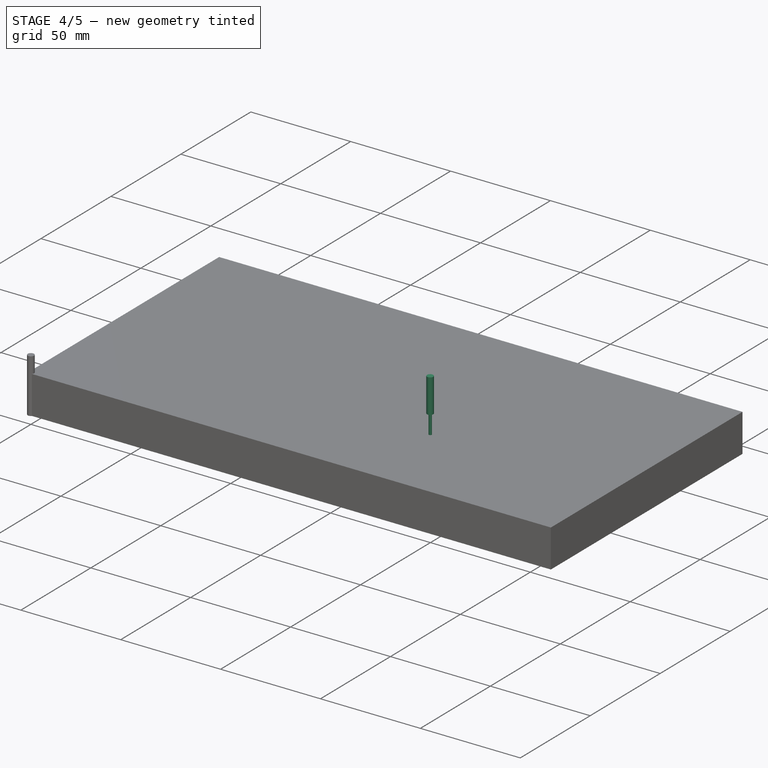
[diagram: stage 4 of 5 — iso view after this stage's code; geometry added in this stage tinted green]
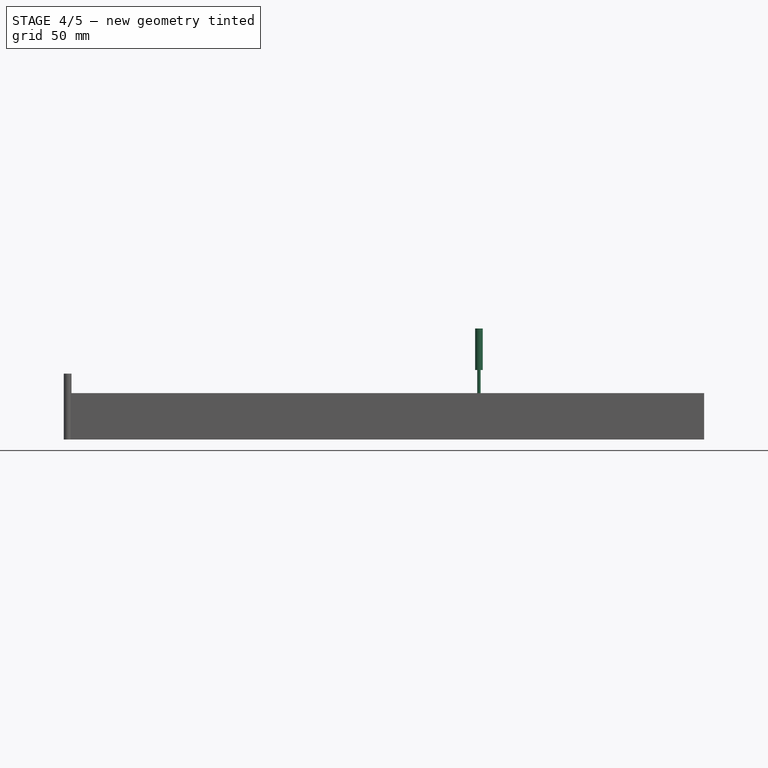
[diagram: stage 4 of 5 — front view after this stage's code; geometry added in this stage tinted green]
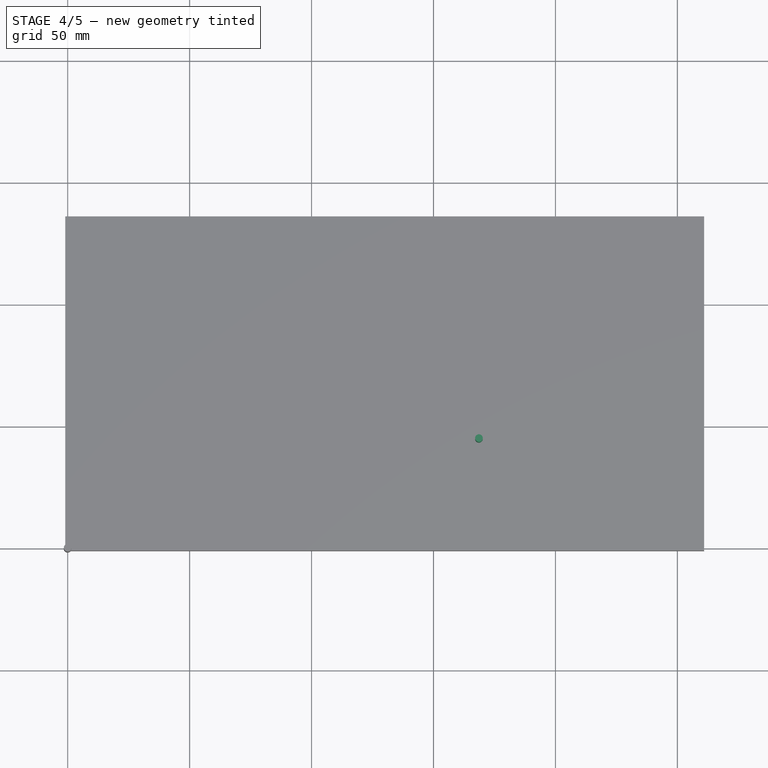
[diagram: stage 4 of 5 — top view after this stage's code; geometry added in this stage tinted green]
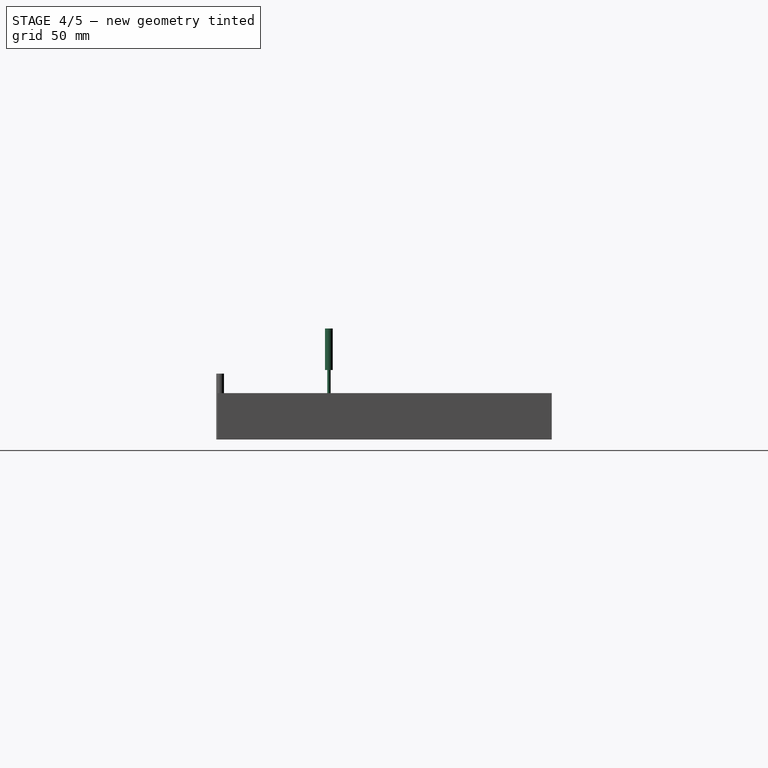
[diagram: stage 4 of 5 — right view after this stage's code; geometry added in this stage tinted green]
FEATURE [App::DocumentObjectGroup] Model
  Group = -> [Clone]
FEATURE [Part::FeaturePython] ToolBit  label="0.8mm_Endmill004"  # Path/CAM toolbit (typed FeaturePython)
  BitPropertyNames = Chipload | CuttingEdgeHeight | Diameter | Flutes | Length | Material | ShankDiameter | SpindleDirection
  BitShape = /private/var/folders/4z/cpn_82wx3qz0m4lfqxz9fps80000gn/T/AppTranslocation/925D4764-D253-419F-845E-4AFC05D10BF7/d/FreeCAD.app/Contents/Resources/Mod/CAM/Tools/Shape/endmill.fcstd
  Chipload = 0
  CuttingEdgeHeight = 10
  Diameter = 0.8
  Flutes = 0
  Length = 27
  Material = 0
  ShankDiameter = 3.17
  ShapeName = endmill
  SpindleDirection = 0
FEATURE [Path::FeaturePython] __0mm_Endmill003  label="3.0mm_Endmill001"  # Path/CAM operation (typed FeaturePython)
  HorizFeed = 3.33333
  HorizRapid = 0
  SpindleDir = 0
  SpindleSpeed = 1000
  Tool = -> ToolBit011
  ToolNumber = 13
  VertFeed = 3.33333
  VertRapid = 0
  expr: HorizRapid = SetupSheet.HorizRapid
  expr: VertRapid = SetupSheet.VertRapid
FEATURE [Part::FeaturePython] ToolBit012  label="3.175mm_endmill009"  # Path/CAM toolbit (typed FeaturePython)
  BitPropertyNames = Chipload | CuttingEdgeHeight | Diameter | Flutes | Length | Material | ShankDiameter | SpindleDirection
  BitShape = /private/var/folders/4z/cpn_82wx3qz0m4lfqxz9fps80000gn/T/AppTranslocation/925D4764-D253-419F-845E-4AFC05D10BF7/d/FreeCAD.app/Contents/Resources/Mod/CAM/Tools/Shape/endmill.fcstd
  Chipload = 0
  CuttingEdgeHeight = 10
  Diameter = 3.17
  Flutes = 0
  Length = 27
  Material = 0
  ShankDiameter = 3.17
  ShapeName = endmill
  SpindleDirection = 0
FEATURE [Path::FeaturePython] __175mm_endmill007  label="3.175mm_endmill008"  # Path/CAM operation (typed FeaturePython)
  HorizFeed = 3.33333
  HorizRapid = 0
  SpindleDir = 0
  SpindleSpeed = 1000
  Tool = -> ToolBit012
  ToolNumber = 6
  VertFeed = 3.33333
  VertRapid = 0
  expr: HorizRapid = SetupSheet.HorizRapid
  expr: VertRapid = SetupSheet.VertRapid
FEATURE [App::DocumentObjectGroup] Tools
  Group = -> [__8mm_Endmill001,__0mm_Endmill001,__2mm_endmill001,__4mm_Endmill001,__6mm_Endmill002,__8mm_Endmill002,__0mm_Endmill002,__2mm_Endmill,__4mm_Endmill002,__6mm_Endmill,__8mm_Endmill003,__0mm_Endmill003,__175mm_endmill007]
FEATURE [Part::FeaturePython] Stock  # WARN: FeaturePython — macro-defined, semantics opaque (R4)
  Base = -> Model
  ExtXneg = 1
  ExtXpos = 1
  ExtYneg = 1
  ExtYpos = 1
  ExtZneg = 0
  ExtZpos = 0
  Placement = pos=(0.00450729,-0.00207935,0) rot=(0,0,1;0rad)
  StockType = FromBase
FEATURE [App::DocumentObjectGroup] Model001
  Group = -> [Clone001]
FEATURE [Part::FeaturePython] ToolBit013  label="0.8mm_Endmill006"  # Path/CAM toolbit (typed FeaturePython)
  BitPropertyNames = Chipload | CuttingEdgeHeight | Diameter | Flutes | Length | Material | ShankDiameter | SpindleDirection
  BitShape = /private/var/folders/4z/cpn_82wx3qz0m4lfqxz9fps80000gn/T/AppTranslocation/925D4764-D253-419F-845E-4AFC05D10BF7/d/FreeCAD.app/Contents/Resources/Mod/CAM/Tools/Shape/endmill.fcstd
  Chipload = 0
  CuttingEdgeHeight = 10
  Diameter = 0.8
  Flutes = 0
  Length = 27
  Material = 0
  ShankDiameter = 3.17
  ShapeName = endmill
  SpindleDirection = 0
FEATURE [Path::FeaturePython] __8mm_Endmill004  label="0.8mm_Endmill005"  # Path/CAM operation (typed FeaturePython)
  HorizFeed = 3.33333
  HorizRapid = 0
  SpindleDir = 0
  SpindleSpeed = 1000
  Tool = -> ToolBit013
  ToolNumber = 2
  VertFeed = 3.33333
  VertRapid = 0
  expr: HorizRapid = SetupSheet001.HorizRapid
  expr: VertRapid = SetupSheet001.VertRapid
FEATURE [Part::FeaturePython] ToolBit014  label="1.0mm_Endmill005"  # Path/CAM toolbit (typed FeaturePython)
  BitPropertyNames = Chipload | CuttingEdgeHeight | Diameter | Flutes | Length | Material | ShankDiameter | SpindleDirection
  BitShape = /private/var/folders/4z/cpn_82wx3qz0m4lfqxz9fps80000gn/T/AppTranslocation/925D4764-D253-419F-845E-4AFC05D10BF7/d/FreeCAD.app/Contents/Resources/Mod/CAM/Tools/Shape/endmill.fcstd
  Chipload = 0
  CuttingEdgeHeight = 10
  Diameter = 1
  Flutes = 0
  Length = 27
  Material = 0
  ShankDiameter = 3.17
  ShapeName = endmill
  SpindleDirection = 0
FEATURE [Path::FeaturePython] __0mm_Endmill004  label="1.0mm_Endmill004"  # Path/CAM operation (typed FeaturePython)
  HorizFeed = 3.33333
  HorizRapid = 0
  SpindleDir = 0
  SpindleSpeed = 1000
  Tool = -> ToolBit014
  ToolNumber = 3
  VertFeed = 3.33333
  VertRapid = 0
  expr: HorizRapid = SetupSheet001.HorizRapid
  expr: VertRapid = SetupSheet001.VertRapid
FEATURE [Part::FeaturePython] ToolBit015  label="1.2mm_endmill005"  # Path/CAM toolbit (typed FeaturePython)
  BitPropertyNames = Chipload | CuttingEdgeHeight | Diameter | Flutes | Length | Material | ShankDiameter | SpindleDirection
  BitShape = /private/var/folders/4z/cpn_82wx3qz0m4lfqxz9fps80000gn/T/AppTranslocation/925D4764-D253-419F-845E-4AFC05D10BF7/d/FreeCAD.app/Contents/Resources/Mod/CAM/Tools/Shape/endmill.fcstd
  Chipload = 0
  CuttingEdgeHeight = 10
  Diameter = 1.2
  Flutes = 0
  Length = 27
  Material = 0
  ShankDiameter = 3.13
  ShapeName = endmill
  SpindleDirection = 0
FEATURE [Path::FeaturePython] __2mm_endmill002  label="1.2mm_endmill004"  # Path/CAM operation (typed FeaturePython)
  HorizFeed = 3.33333
  HorizRapid = 0
  SpindleDir = 0
  SpindleSpeed = 1000
  Tool = -> ToolBit015
  ToolNumber = 4
  VertFeed = 3.33333
  VertRapid = 0
  expr: HorizRapid = SetupSheet001.HorizRapid
  expr: VertRapid = SetupSheet001.VertRapid
FEATURE [Part::FeaturePython] ToolBit016  label="1.4mm_Endmill005"  # Path/CAM toolbit (typed FeaturePython)
  BitPropertyNames = Chipload | CuttingEdgeHeight | Diameter | Flutes | Length | Material | ShankDiameter | SpindleDirection
  BitShape = /private/var/folders/4z/cpn_82wx3qz0m4lfqxz9fps80000gn/T/AppTranslocation/925D4764-D253-419F-845E-4AFC05D10BF7/d/FreeCAD.app/Contents/Resources/Mod/CAM/Tools/Shape/endmill.fcstd
  Chipload = 0
  CuttingEdgeHeight = 10
  Diameter = 1.4
  Flutes = 0
  Length = 27
  Material = 0
  Placement = pos=(168.641,44.613,18.5333) rot=(0,0,1;0rad)
  ShankDiameter = 3.17
  ShapeName = endmill
  SpindleDirection = 0
FEATURE [Path::FeaturePython] __4mm_Endmill003  label="1.4mm_Endmill004"  # Path/CAM operation (typed FeaturePython)
  HorizFeed = 8.33333
  HorizRapid = 0
  SpindleDir = 0
  SpindleSpeed = 2000
  Tool = -> ToolBit016
  ToolNumber = 5
  VertFeed = 8.33333
  VertRapid = 0
  expr: HorizRapid = SetupSheet001.HorizRapid
  expr: VertRapid = SetupSheet001.VertRapid
FEATURE [Part::FeaturePython] ToolBit017  label="1.6mm_Endmill005"  # Path/CAM toolbit (typed FeaturePython)
  BitPropertyNames = Chipload | CuttingEdgeHeight | Diameter | Flutes | Length | Material | ShankDiameter | SpindleDirection
  BitShape = /private/var/folders/4z/cpn_82wx3qz0m4lfqxz9fps80000gn/T/AppTranslocation/925D4764-D253-419F-845E-4AFC05D10BF7/d/FreeCAD.app/Contents/Resources/Mod/CAM/Tools/Shape/endmill.fcstd
  Chipload = 0
  CuttingEdgeHeight = 10
  Diameter = 1.6
  Flutes = 0
  Length = 27
  Material = 0
  ShankDiameter = 3.17
  ShapeName = endmill
  SpindleDirection = 0
FEATURE [Path::FeaturePython] __6mm_Endmill003  label="1.6mm_Endmill004"  # Path/CAM operation (typed FeaturePython)
  HorizFeed = 8.33333
  HorizRapid = 0
  SpindleDir = 0
  SpindleSpeed = 1000
  Tool = -> ToolBit017
  ToolNumber = 14
  VertFeed = 8.33333
  VertRapid = 0
  expr: HorizRapid = SetupSheet001.HorizRapid
  expr: VertRapid = SetupSheet001.VertRapid
FEATURE [Part::FeaturePython] ToolBit018  label="1.8mm_Endmill003"  # Path/CAM toolbit (typed FeaturePython)
  BitPropertyNames = Chipload | CuttingEdgeHeight | Diameter | Flutes | Length | Material | ShankDiameter | SpindleDirection
  BitShape = /private/var/folders/4z/cpn_82wx3qz0m4lfqxz9fps80000gn/T/AppTranslocation/925D4764-D253-419F-845E-4AFC05D10BF7/d/FreeCAD.app/Contents/Resources/Mod/CAM/Tools/Shape/endmill.fcstd
  Chipload = 0
  CuttingEdgeHeight = 10
  Diameter = 1.8
  Flutes = 0
  Length = 27
  Material = 0
  ShankDiameter = 3.17
  ShapeName = endmill
  SpindleDirection = 0
FEATURE [Path::FeaturePython] __8mm_Endmill005  label="1.8mm_Endmill002"  # Path/CAM operation (typed FeaturePython)
  HorizFeed = 3.33333
  HorizRapid = 0
  SpindleDir = 0
  SpindleSpeed = 1000
  Tool = -> ToolBit018
  ToolNumber = 7
  VertFeed = 3.33333
  VertRapid = 0
  expr: HorizRapid = SetupSheet001.HorizRapid
  expr: VertRapid = SetupSheet001.VertRapid
FEATURE [Part::FeaturePython] ToolBit019  label="2.0mm_Endmill003"  # Path/CAM toolbit (typed FeaturePython)
  BitPropertyNames = Chipload | CuttingEdgeHeight | Diameter | Flutes | Length | Material | ShankDiameter | SpindleDirection
  BitShape = /private/var/folders/4z/cpn_82wx3qz0m4lfqxz9fps80000gn/T/AppTranslocation/925D4764-D253-419F-845E-4AFC05D10BF7/d/FreeCAD.app/Contents/Resources/Mod/CAM/Tools/Shape/endmill.fcstd
  Chipload = 0
  CuttingEdgeHeight = 10
  Diameter = 2
  Flutes = 0
  Length = 27
  Material = 0
  ShankDiameter = 3.17
  ShapeName = endmill
  SpindleDirection = 0
FEATURE [Path::FeaturePython] __0mm_Endmill005  label="2.0mm_Endmill002"  # Path/CAM operation (typed FeaturePython)
  HorizFeed = 3.33333
  HorizRapid = 0
  SpindleDir = 0
  SpindleSpeed = 1000
  Tool = -> ToolBit019
  ToolNumber = 8
  VertFeed = 3.33333
  VertRapid = 0
  expr: HorizRapid = SetupSheet001.HorizRapid
  expr: VertRapid = SetupSheet001.VertRapid
FEATURE [Part::FeaturePython] ToolBit020  label="2.2mm_Endmill003"  # Path/CAM toolbit (typed FeaturePython)
  BitPropertyNames = Chipload | CuttingEdgeHeight | Diameter | Flutes | Length | Material | ShankDiameter | SpindleDirection
  BitShape = /private/var/folders/4z/cpn_82wx3qz0m4lfqxz9fps80000gn/T/AppTranslocation/925D4764-D253-419F-845E-4AFC05D10BF7/d/FreeCAD.app/Contents/Resources/Mod/CAM/Tools/Shape/endmill.fcstd
  Chipload = 0
  CuttingEdgeHeight = 10
  Diameter = 2.2
  Flutes = 0
  Length = 27
  Material = 0
  ShankDiameter = 3.17
  ShapeName = endmill
  SpindleDirection = 0
FEATURE [Path::FeaturePython] __2mm_Endmill001  label="2.2mm_Endmill002"  # Path/CAM operation (typed FeaturePython)
  HorizFeed = 3.33333
  HorizRapid = 0
  SpindleDir = 0
  SpindleSpeed = 1000
  Tool = -> ToolBit020
  ToolNumber = 9
  VertFeed = 3.33333
  VertRapid = 0
  expr: HorizRapid = SetupSheet001.HorizRapid
  expr: VertRapid = SetupSheet001.VertRapid
FEATURE [Part::FeaturePython] ToolBit021  label="2.4mm_Endmill003"  # Path/CAM toolbit (typed FeaturePython)
  BitPropertyNames = Chipload | CuttingEdgeHeight | Diameter | Flutes | Length | Material | ShankDiameter | SpindleDirection
  BitShape = /private/var/folders/4z/cpn_82wx3qz0m4lfqxz9fps80000gn/T/AppTranslocation/925D4764-D253-419F-845E-4AFC05D10BF7/d/FreeCAD.app/Contents/Resources/Mod/CAM/Tools/Shape/endmill.fcstd
  Chipload = 0
  CuttingEdgeHeight = 10
  Diameter = 2.4
  Flutes = 0
  Length = 27
  Material = 0
  ShankDiameter = 3.17
  ShapeName = endmill
  SpindleDirection = 0
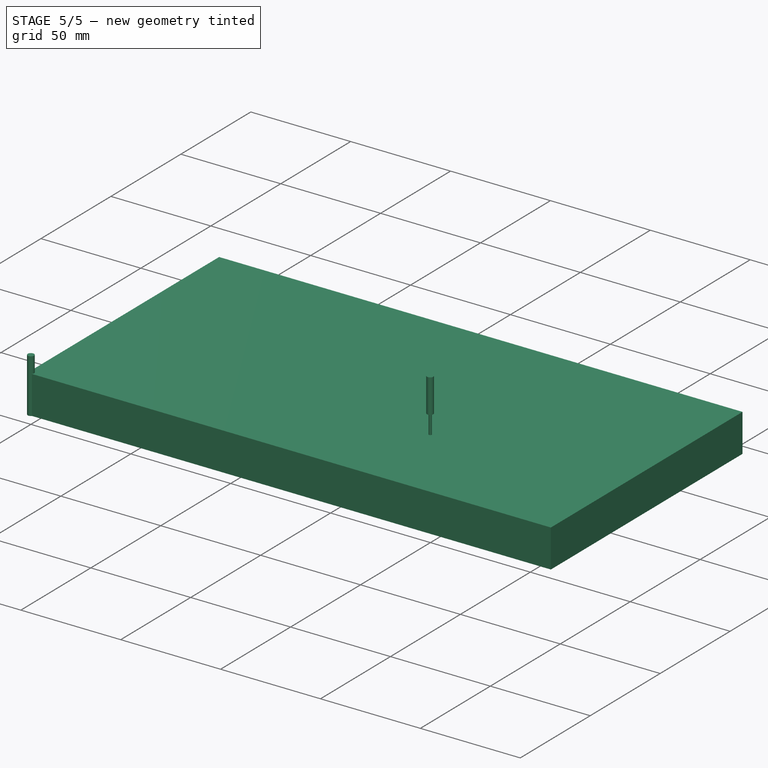
[diagram: stage 5 of 5 — iso view after this stage's code; geometry added in this stage tinted green]
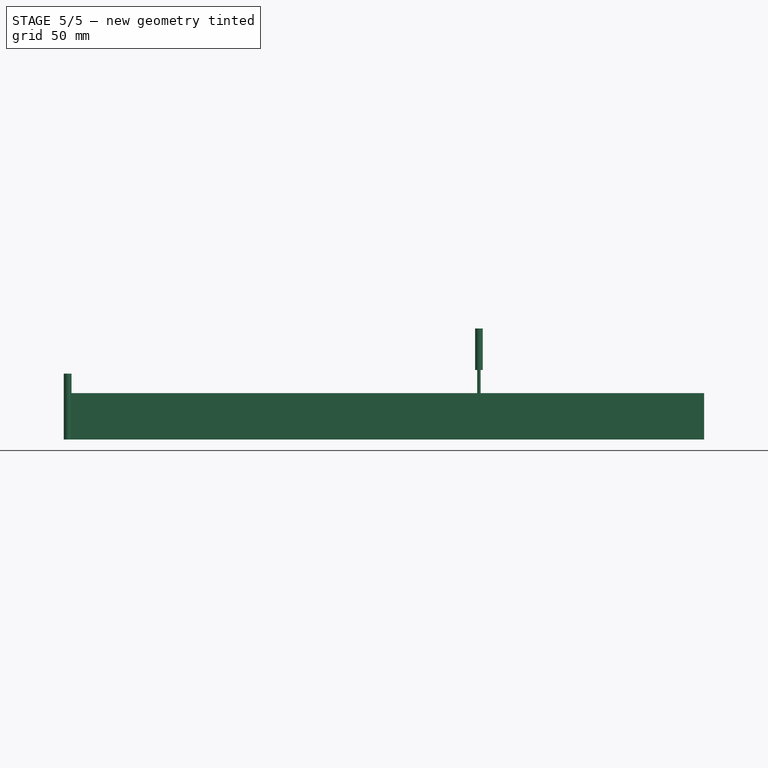
[diagram: stage 5 of 5 — front view after this stage's code; geometry added in this stage tinted green]
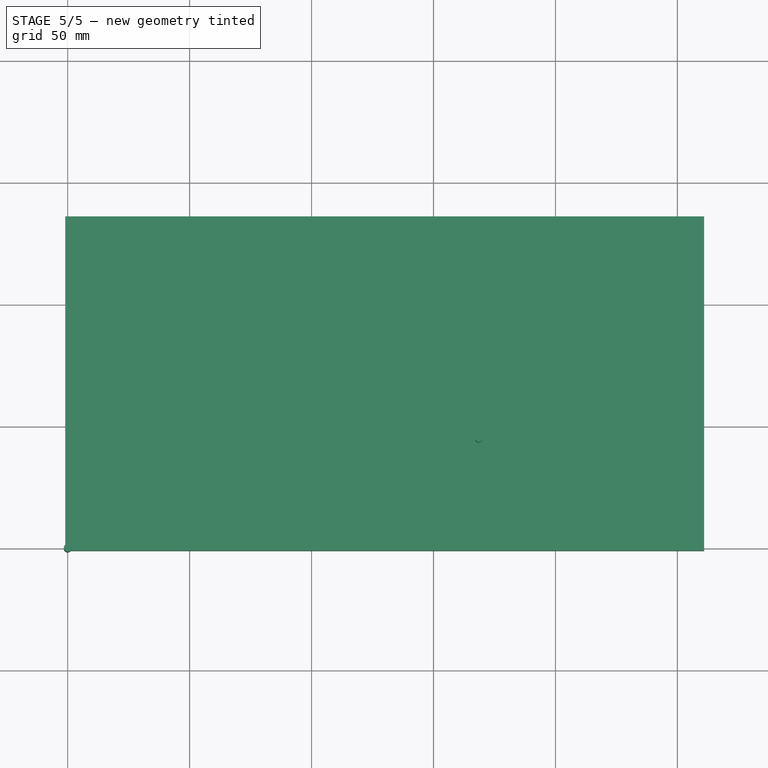
[diagram: stage 5 of 5 — top view after this stage's code; geometry added in this stage tinted green]
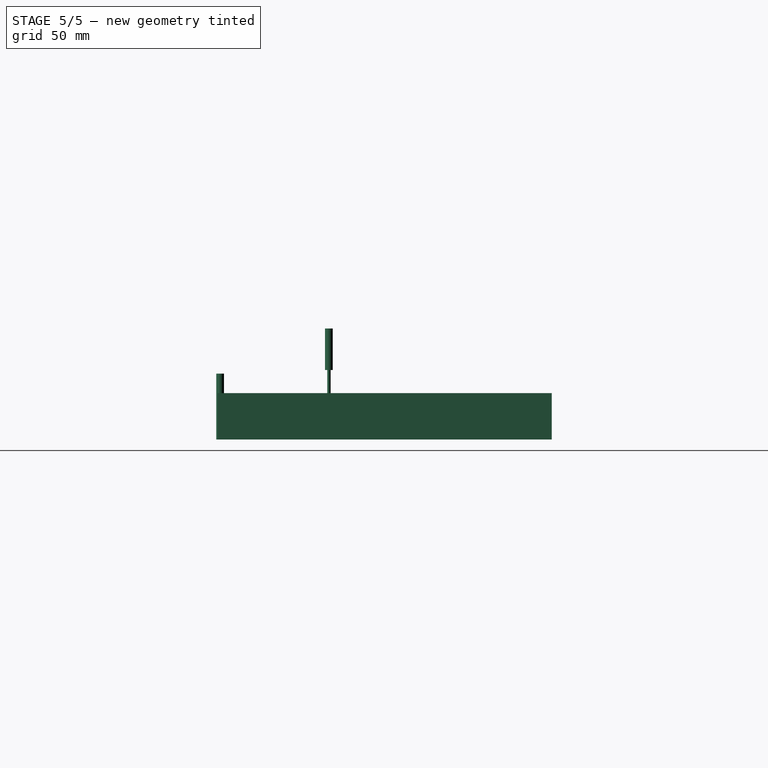
[diagram: stage 5 of 5 — right view after this stage's code; geometry added in this stage tinted green]
FEATURE [Path::FeaturePython] __8mm_Endmill001  label="0.8mm_Endmill002"  # Path/CAM operation (typed FeaturePython)
  HorizFeed = 3.33333
  HorizRapid = 0
  SpindleDir = 0
  SpindleSpeed = 1000
  Tool = -> ToolBit
  ToolNumber = 2
  VertFeed = 3.33333
  VertRapid = 0
  expr: HorizRapid = SetupSheet.HorizRapid
  expr: VertRapid = SetupSheet.VertRapid
FEATURE [Part::FeaturePython] ToolBit001  label="1.0mm_Endmill003"  # Path/CAM toolbit (typed FeaturePython)
  BitPropertyNames = Chipload | CuttingEdgeHeight | Diameter | Flutes | Length | Material | ShankDiameter | SpindleDirection
  BitShape = /private/var/folders/4z/cpn_82wx3qz0m4lfqxz9fps80000gn/T/AppTranslocation/925D4764-D253-419F-845E-4AFC05D10BF7/d/FreeCAD.app/Contents/Resources/Mod/CAM/Tools/Shape/endmill.fcstd
  Chipload = 0
  CuttingEdgeHeight = 10
  Diameter = 1
  Flutes = 0
  Length = 27
  Material = 0
  ShankDiameter = 3.17
  ShapeName = endmill
  SpindleDirection = 0
FEATURE [Path::FeaturePython] __0mm_Endmill001  label="1.0mm_Endmill002"  # Path/CAM operation (typed FeaturePython)
  HorizFeed = 3.33333
  HorizRapid = 0
  SpindleDir = 0
  SpindleSpeed = 1000
  Tool = -> ToolBit001
  ToolNumber = 3
  VertFeed = 3.33333
  VertRapid = 0
  expr: HorizRapid = SetupSheet.HorizRapid
  expr: VertRapid = SetupSheet.VertRapid
FEATURE [Part::FeaturePython] ToolBit002  label="1.2mm_endmill003"  # Path/CAM toolbit (typed FeaturePython)
  BitPropertyNames = Chipload | CuttingEdgeHeight | Diameter | Flutes | Length | Material | ShankDiameter | SpindleDirection
  BitShape = /private/var/folders/4z/cpn_82wx3qz0m4lfqxz9fps80000gn/T/AppTranslocation/925D4764-D253-419F-845E-4AFC05D10BF7/d/FreeCAD.app/Contents/Resources/Mod/CAM/Tools/Shape/endmill.fcstd
  Chipload = 0
  CuttingEdgeHeight = 10
  Diameter = 1.2
  Flutes = 0
  Length = 27
  Material = 0
  ShankDiameter = 3.13
  ShapeName = endmill
  SpindleDirection = 0
FEATURE [Path::FeaturePython] __2mm_endmill001  label="1.2mm_endmill002"  # Path/CAM operation (typed FeaturePython)
  HorizFeed = 3.33333
  HorizRapid = 0
  SpindleDir = 0
  SpindleSpeed = 1000
  Tool = -> ToolBit002
  ToolNumber = 4
  VertFeed = 3.33333
  VertRapid = 0
  expr: HorizRapid = SetupSheet.HorizRapid
  expr: VertRapid = SetupSheet.VertRapid
FEATURE [Part::FeaturePython] ToolBit003  label="1.4mm_Endmill003"  # Path/CAM toolbit (typed FeaturePython)
  BitPropertyNames = Chipload | CuttingEdgeHeight | Diameter | Flutes | Length | Material | ShankDiameter | SpindleDirection
  BitShape = /private/var/folders/4z/cpn_82wx3qz0m4lfqxz9fps80000gn/T/AppTranslocation/925D4764-D253-419F-845E-4AFC05D10BF7/d/FreeCAD.app/Contents/Resources/Mod/CAM/Tools/Shape/endmill.fcstd
  Chipload = 0
  CuttingEdgeHeight = 10
  Diameter = 1.4
  Flutes = 0
  Length = 27
  Material = 0
  ShankDiameter = 3.17
  ShapeName = endmill
  SpindleDirection = 0
FEATURE [Path::FeaturePython] __4mm_Endmill001  label="1.4mm_Endmill002"  # Path/CAM operation (typed FeaturePython)
  HorizFeed = 33.3333
  HorizRapid = 0
  SpindleDir = 0
  SpindleSpeed = 0
  Tool = -> ToolBit003
  ToolNumber = 5
  VertFeed = 33.3333
  VertRapid = 0
  expr: HorizRapid = SetupSheet.HorizRapid
  expr: VertRapid = SetupSheet.VertRapid
FEATURE [Part::FeaturePython] ToolBit004  label="1.6mm_Endmill002"  # Path/CAM toolbit (typed FeaturePython)
  BitPropertyNames = Chipload | CuttingEdgeHeight | Diameter | Flutes | Length | Material | ShankDiameter | SpindleDirection
  BitShape = /private/var/folders/4z/cpn_82wx3qz0m4lfqxz9fps80000gn/T/AppTranslocation/925D4764-D253-419F-845E-4AFC05D10BF7/d/FreeCAD.app/Contents/Resources/Mod/CAM/Tools/Shape/endmill.fcstd
  Chipload = 0
  CuttingEdgeHeight = 10
  Diameter = 1.6
  Flutes = 0
  Length = 27
  Material = 0
  ShankDiameter = 3.17
  ShapeName = endmill
  SpindleDirection = 0
FEATURE [Path::FeaturePython] __6mm_Endmill002  label="1.6mm_Endmill003"  # Path/CAM operation (typed FeaturePython)
  HorizFeed = 8.33333
  HorizRapid = 0
  SpindleDir = 0
  SpindleSpeed = 1000
  Tool = -> ToolBit004
  ToolNumber = 14
  VertFeed = 8.33333
  VertRapid = 0
  expr: HorizRapid = SetupSheet.HorizRapid
  expr: VertRapid = SetupSheet.VertRapid
FEATURE [Part::FeaturePython] ToolBit005  label="1.8mm_Endmill"  # Path/CAM toolbit (typed FeaturePython)
  BitPropertyNames = Chipload | CuttingEdgeHeight | Diameter | Flutes | Length | Material | ShankDiameter | SpindleDirection
  BitShape = /private/var/folders/4z/cpn_82wx3qz0m4lfqxz9fps80000gn/T/AppTranslocation/925D4764-D253-419F-845E-4AFC05D10BF7/d/FreeCAD.app/Contents/Resources/Mod/CAM/Tools/Shape/endmill.fcstd
  Chipload = 0
  CuttingEdgeHeight = 10
  Diameter = 1.8
  Flutes = 0
  Length = 27
  Material = 0
  ShankDiameter = 3.17
  ShapeName = endmill
  SpindleDirection = 0
FEATURE [Path::FeaturePython] __8mm_Endmill002  label="1.8mm_Endmill001"  # Path/CAM operation (typed FeaturePython)
  HorizFeed = 3.33333
  HorizRapid = 0
  SpindleDir = 0
  SpindleSpeed = 1000
  Tool = -> ToolBit005
  ToolNumber = 7
  VertFeed = 3.33333
  VertRapid = 0
  expr: HorizRapid = SetupSheet.HorizRapid
  expr: VertRapid = SetupSheet.VertRapid
FEATURE [Part::FeaturePython] ToolBit006  label="2.0mm_Endmill"  # Path/CAM toolbit (typed FeaturePython)
  BitPropertyNames = Chipload | CuttingEdgeHeight | Diameter | Flutes | Length | Material | ShankDiameter | SpindleDirection
  BitShape = /private/var/folders/4z/cpn_82wx3qz0m4lfqxz9fps80000gn/T/AppTranslocation/925D4764-D253-419F-845E-4AFC05D10BF7/d/FreeCAD.app/Contents/Resources/Mod/CAM/Tools/Shape/endmill.fcstd
  Chipload = 0
  CuttingEdgeHeight = 10
  Diameter = 2
  Flutes = 0
  Length = 27
  Material = 0
  ShankDiameter = 3.17
  ShapeName = endmill
  SpindleDirection = 0
FEATURE [Path::FeaturePython] __0mm_Endmill002  label="2.0mm_Endmill001"  # Path/CAM operation (typed FeaturePython)
  HorizFeed = 3.33333
  HorizRapid = 0
  SpindleDir = 0
  SpindleSpeed = 1000
  Tool = -> ToolBit006
  ToolNumber = 8
  VertFeed = 3.33333
  VertRapid = 0
  expr: HorizRapid = SetupSheet.HorizRapid
  expr: VertRapid = SetupSheet.VertRapid
FEATURE [Part::FeaturePython] ToolBit007  label="2.2mm_Endmill"  # Path/CAM toolbit (typed FeaturePython)
  BitPropertyNames = Chipload | CuttingEdgeHeight | Diameter | Flutes | Length | Material | ShankDiameter | SpindleDirection
  BitShape = /private/var/folders/4z/cpn_82wx3qz0m4lfqxz9fps80000gn/T/AppTranslocation/925D4764-D253-419F-845E-4AFC05D10BF7/d/FreeCAD.app/Contents/Resources/Mod/CAM/Tools/Shape/endmill.fcstd
  Chipload = 0
  CuttingEdgeHeight = 10
  Diameter = 2.2
  Flutes = 0
  Length = 27
  Material = 0
  ShankDiameter = 3.17
  ShapeName = endmill
  SpindleDirection = 0
FEATURE [Path::FeaturePython] __2mm_Endmill  label="2.2mm_Endmill001"  # Path/CAM operation (typed FeaturePython)
  HorizFeed = 3.33333
  HorizRapid = 0
  SpindleDir = 0
  SpindleSpeed = 1000
  Tool = -> ToolBit007
  ToolNumber = 9
  VertFeed = 3.33333
  VertRapid = 0
  expr: HorizRapid = SetupSheet.HorizRapid
  expr: VertRapid = SetupSheet.VertRapid
FEATURE [Part::FeaturePython] ToolBit008  label="2.4mm_Endmill"  # Path/CAM toolbit (typed FeaturePython)
  BitPropertyNames = Chipload | CuttingEdgeHeight | Diameter | Flutes | Length | Material | ShankDiameter | SpindleDirection
  BitShape = /private/var/folders/4z/cpn_82wx3qz0m4lfqxz9fps80000gn/T/AppTranslocation/925D4764-D253-419F-845E-4AFC05D10BF7/d/FreeCAD.app/Contents/Resources/Mod/CAM/Tools/Shape/endmill.fcstd
  Chipload = 0
  CuttingEdgeHeight = 10
  Diameter = 2.4
  Flutes = 0
  Length = 27
  Material = 0
  ShankDiameter = 3.17
  ShapeName = endmill
  SpindleDirection = 0
FEATURE [Path::FeaturePython] __4mm_Endmill002  label="2.4mm_Endmill001"  # Path/CAM operation (typed FeaturePython)
  HorizFeed = 3.33333
  HorizRapid = 0
  SpindleDir = 0
  SpindleSpeed = 1000
  Tool = -> ToolBit008
  ToolNumber = 10
  VertFeed = 3.33333
  VertRapid = 0
  expr: HorizRapid = SetupSheet.HorizRapid
  expr: VertRapid = SetupSheet.VertRapid
FEATURE [Part::FeaturePython] ToolBit009  label="2.6mm_Endmill"  # Path/CAM toolbit (typed FeaturePython)
  BitPropertyNames = Chipload | CuttingEdgeHeight | Diameter | Flutes | Length | Material | ShankDiameter | SpindleDirection
  BitShape = /private/var/folders/4z/cpn_82wx3qz0m4lfqxz9fps80000gn/T/AppTranslocation/925D4764-D253-419F-845E-4AFC05D10BF7/d/FreeCAD.app/Contents/Resources/Mod/CAM/Tools/Shape/endmill.fcstd
  Chipload = 0
  CuttingEdgeHeight = 10
  Diameter = 2.6
  Flutes = 0
  Length = 27
  Material = 0
  ShankDiameter = 3.17
  ShapeName = endmill
  SpindleDirection = 0
FEATURE [Path::FeaturePython] __6mm_Endmill  label="2.6mm_Endmill001"  # Path/CAM operation (typed FeaturePython)
  HorizFeed = 3.33333
  HorizRapid = 0
  SpindleDir = 0
  SpindleSpeed = 1000
  Tool = -> ToolBit009
  ToolNumber = 11
  VertFeed = 3.33333
  VertRapid = 0
  expr: HorizRapid = SetupSheet.HorizRapid
  expr: VertRapid = SetupSheet.VertRapid
FEATURE [Part::FeaturePython] ToolBit010  label="2.8mm_Endmill"  # Path/CAM toolbit (typed FeaturePython)
  BitPropertyNames = Chipload | CuttingEdgeHeight | Diameter | Flutes | Length | Material | ShankDiameter | SpindleDirection
  BitShape = /private/var/folders/4z/cpn_82wx3qz0m4lfqxz9fps80000gn/T/AppTranslocation/925D4764-D253-419F-845E-4AFC05D10BF7/d/FreeCAD.app/Contents/Resources/Mod/CAM/Tools/Shape/endmill.fcstd
  Chipload = 0
  CuttingEdgeHeight = 10
  Diameter = 2.8
  Flutes = 0
  Length = 27
  Material = 0
  ShankDiameter = 3.17
  ShapeName = endmill
  SpindleDirection = 0
FEATURE [Path::FeaturePython] __8mm_Endmill003  label="2.8mm_Endmill001"  # Path/CAM operation (typed FeaturePython)
  HorizFeed = 3.33333
  HorizRapid = 0
  SpindleDir = 0
  SpindleSpeed = 1000
  Tool = -> ToolBit010
  ToolNumber = 12
  VertFeed = 3.33333
  VertRapid = 0
  expr: HorizRapid = SetupSheet.HorizRapid
  expr: VertRapid = SetupSheet.VertRapid
FEATURE [Part::FeaturePython] ToolBit011  label="3.0mm_Endmill"  # Path/CAM toolbit (typed FeaturePython)
  BitPropertyNames = Chipload | CuttingEdgeHeight | Diameter | Flutes | Length | Material | ShankDiameter | SpindleDirection
  BitShape = /private/var/folders/4z/cpn_82wx3qz0m4lfqxz9fps80000gn/T/AppTranslocation/925D4764-D253-419F-845E-4AFC05D10BF7/d/FreeCAD.app/Contents/Resources/Mod/CAM/Tools/Shape/endmill.fcstd
  Chipload = 0
  CuttingEdgeHeight = 10
  Diameter = 3
  Flutes = 0
  Length = 27
  Material = 0
  ShankDiameter = 3.17
  ShapeName = endmill
  SpindleDirection = 0
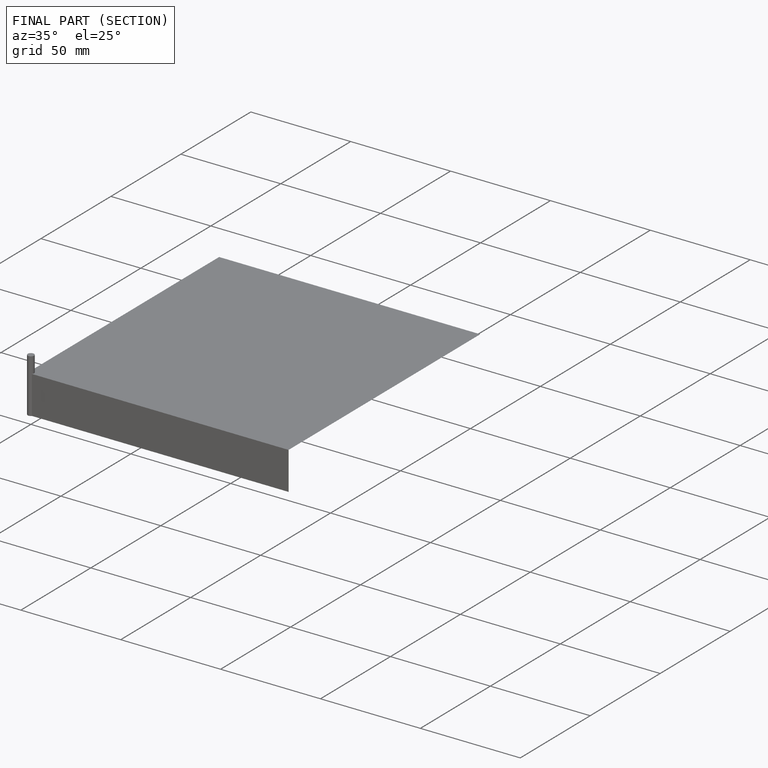
[diagram: finished part — half-section view (interior)]
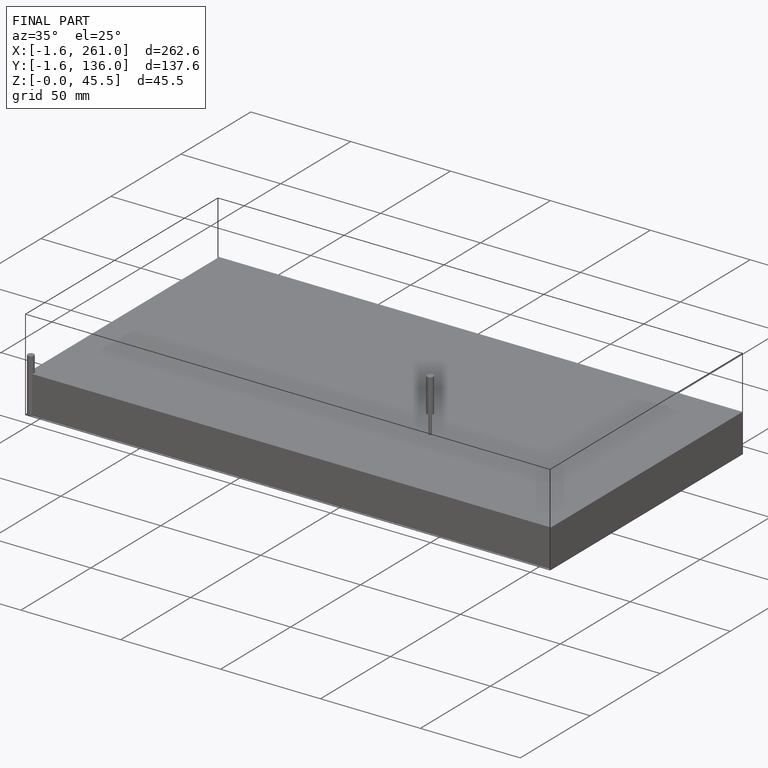
[diagram: finished part — iso view with bounding-box wireframe]
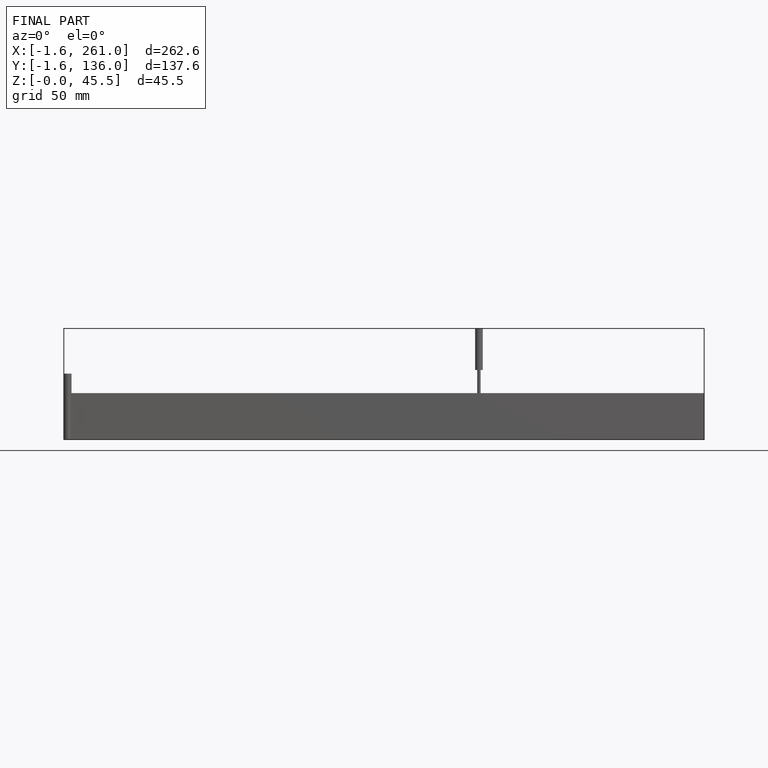
[diagram: finished part — front view with bounding-box wireframe]
